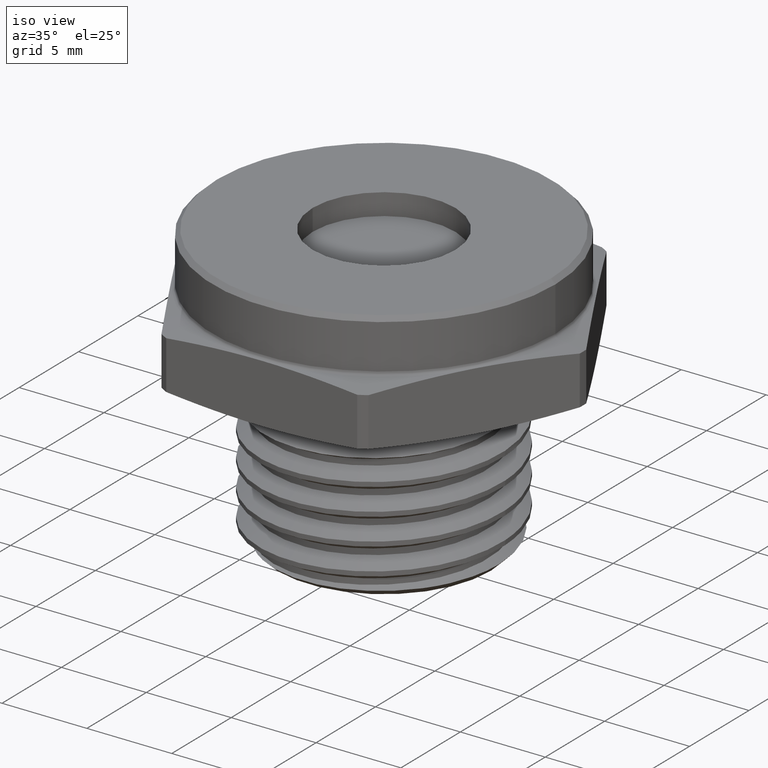
[diagram: clean part render]
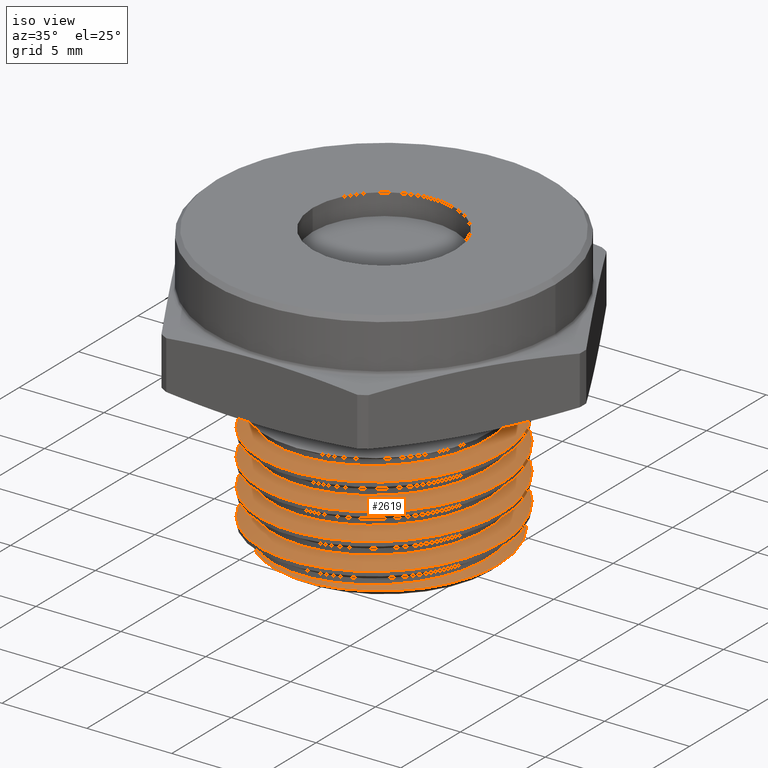
[diagram: same view with one face highlighted and labeled with its STEP entity id]
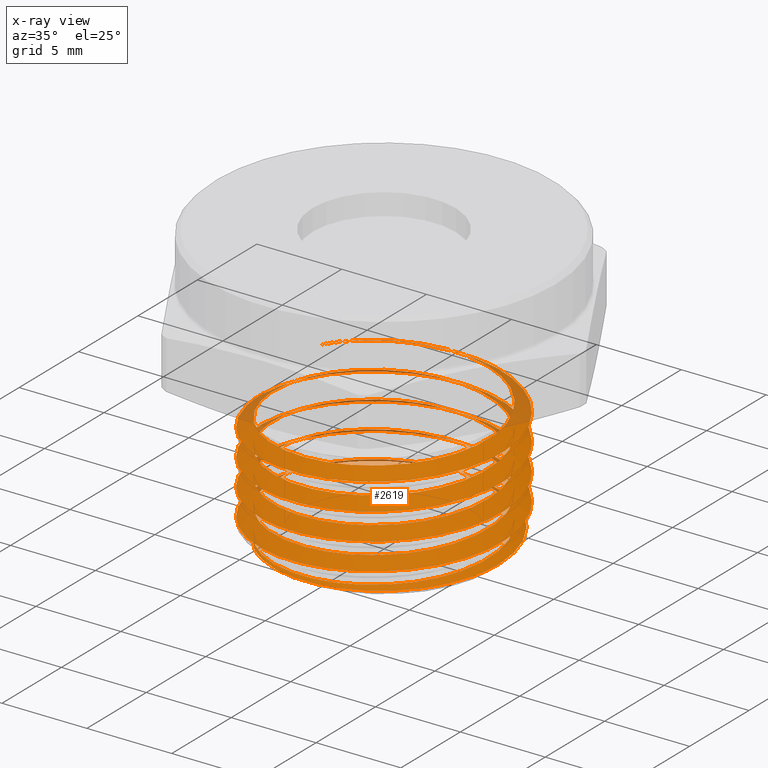
[diagram: x-ray of the same camera — body ghosted, the highlighted face saturated]
A machine part, iso view. The second image highlights one B-rep face of the part: STEP entity #2619.
The next image is the same camera in x-ray: the body ghosted, the highlighted face saturated — about 9% of this face is hidden behind the body in this view.
In plain terms, the highlighted face is a freeform B-spline surface patch.
Its self-contained STEP definition (entity closure, byte-faithful):
#11 = CARTESIAN_POINT ( 'NONE',  ( 0.1755031952628748100, 0.1755046109152726400, -0.2901577751675386600 ) ) ;
#12 = CARTESIAN_POINT ( 'NONE',  ( 0.1028068051627558200, 0.2482004146329688800, -0.2862515251675387100 ) ) ;
#13 = CARTESIAN_POINT ( 'NONE',  ( -1.001017410324708000E-006, 0.2481999999979813700, -0.2823452751675386600 ) ) ;
#14 = CARTESIAN_POINT ( 'NONE',  ( -0.1028088071975765000, 0.2481995853629938000, -0.2784390251675386600 ) ) ;
#15 = CARTESIAN_POINT ( 'NONE',  ( -0.1755046109152726100, 0.1755031952628748100, -0.2745327751675387100 ) ) ;
#16 = CARTESIAN_POINT ( 'NONE',  ( -0.2482004146329688800, 0.1028068051627558500, -0.2706265251675386600 ) ) ;
#17 = CARTESIAN_POINT ( 'NONE',  ( -0.2481999999979813700, -1.001017410370301500E-006, -0.2667202751675387100 ) ) ;
#18 = CARTESIAN_POINT ( 'NONE',  ( -0.2481995853629938300, -0.1028088071975764200, -0.2628140251675386600 ) ) ;
#19 = CARTESIAN_POINT ( 'NONE',  ( -0.1755031952628747800, -0.1755046109152726400, -0.2589077751675386600 ) ) ;
#20 = CARTESIAN_POINT ( 'NONE',  ( -0.1028068051627557100, -0.2482004146329689400, -0.2550015251675387100 ) ) ;
#21 = CARTESIAN_POINT ( 'NONE',  ( 1.001017410355103800E-006, -0.2481999999979813700, -0.2510952751675386600 ) ) ;
#22 = CARTESIAN_POINT ( 'NONE',  ( 0.1028088071975764000, -0.2481995853629938300, -0.2471890251675387100 ) ) ;
#23 = CARTESIAN_POINT ( 'NONE',  ( 0.1755046109152726400, -0.1755031952628747800, -0.2432827751675386800 ) ) ;
#24 = CARTESIAN_POINT ( 'NONE',  ( 0.2482004146329689400, -0.1028068051627557100, -0.2393765251675386300 ) ) ;
#25 = CARTESIAN_POINT ( 'NONE',  ( 0.2481999999979813700, 1.001017410339905900E-006, -0.2354702751675386800 ) ) ;
#26 = CARTESIAN_POINT ( 'NONE',  ( 0.2481995853629939400, 0.1028088071975763600, -0.2315640251675386800 ) ) ;
#27 = CARTESIAN_POINT ( 'NONE',  ( 0.1755031952628748100, 0.1755046109152726400, -0.2276577751675386800 ) ) ;
#28 = CARTESIAN_POINT ( 'NONE',  ( 0.1028068051627558200, 0.2482004146329688800, -0.2237515251675386800 ) ) ;
#29 = CARTESIAN_POINT ( 'NONE',  ( -1.001017410324708000E-006, 0.2481999999979813700, -0.2198452751675386600 ) ) ;
#30 = CARTESIAN_POINT ( 'NONE',  ( -0.1028088071975765000, 0.2481995853629938000, -0.2159390251675386800 ) ) ;
#31 = CARTESIAN_POINT ( 'NONE',  ( -0.1755046109152726100, 0.1755031952628748100, -0.2120327751675386600 ) ) ;
#32 = CARTESIAN_POINT ( 'NONE',  ( -0.2482004146329688800, 0.1028068051627558500, -0.2081265251675387100 ) ) ;
#33 = CARTESIAN_POINT ( 'NONE',  ( -0.2481999999979813700, -1.001017410370301500E-006, -0.2042202751675386800 ) ) ;
#34 = CARTESIAN_POINT ( 'NONE',  ( -0.2481995853629938300, -0.1028088071975764200, -0.2003140251675386300 ) ) ;
#35 = CARTESIAN_POINT ( 'NONE',  ( -0.1755031952628747800, -0.1755046109152726400, -0.1964077751675386800 ) ) ;
#36 = CARTESIAN_POINT ( 'NONE',  ( -0.1028068051627557100, -0.2482004146329689400, -0.1925015251675386600 ) ) ;
#37 = CARTESIAN_POINT ( 'NONE',  ( 1.001017410355103800E-006, -0.2481999999979813700, -0.1885952751675386800 ) ) ;
#38 = CARTESIAN_POINT ( 'NONE',  ( 0.1028088071975764000, -0.2481995853629938300, -0.1846890251675386800 ) ) ;
#39 = CARTESIAN_POINT ( 'NONE',  ( 0.1755046109152726400, -0.1755031952628747800, -0.1807827751675386600 ) ) ;
#40 = CARTESIAN_POINT ( 'NONE',  ( 0.2482004146329689400, -0.1028068051627557100, -0.1768765251675386800 ) ) ;
#41 = CARTESIAN_POINT ( 'NONE',  ( 0.2481999999979813700, 1.001017410339905900E-006, -0.1729702751675386600 ) ) ;
#42 = CARTESIAN_POINT ( 'NONE',  ( 0.2481995853629939400, 0.1028088071975763600, -0.1690640251675387100 ) ) ;
#43 = CARTESIAN_POINT ( 'NONE',  ( 0.1755031952628748100, 0.1755046109152726400, -0.1651577751675386800 ) ) ;
#44 = CARTESIAN_POINT ( 'NONE',  ( 0.1028068051627558200, 0.2482004146329688800, -0.1612515251675386600 ) ) ;
#45 = CARTESIAN_POINT ( 'NONE',  ( -1.001017410324708000E-006, 0.2481999999979813700, -0.1573452751675386800 ) ) ;
#46 = CARTESIAN_POINT ( 'NONE',  ( -0.1028088071975765000, 0.2481995853629938000, -0.1534390251675386800 ) ) ;
#47 = CARTESIAN_POINT ( 'NONE',  ( -0.1755046109152726100, 0.1755031952628748100, -0.1495327751675386800 ) ) ;
#48 = CARTESIAN_POINT ( 'NONE',  ( -0.2482004146329688800, 0.1028068051627558500, -0.1456265251675387100 ) ) ;
#49 = CARTESIAN_POINT ( 'NONE',  ( -0.2481999999979813700, -1.001017410370301500E-006, -0.1417202751675386600 ) ) ;
#50 = CARTESIAN_POINT ( 'NONE',  ( -0.2481995853629938300, -0.1028088071975764200, -0.1378140251675386800 ) ) ;
#51 = CARTESIAN_POINT ( 'NONE',  ( -0.1755031952628747800, -0.1755046109152726400, -0.1339077751675387100 ) ) ;
#52 = CARTESIAN_POINT ( 'NONE',  ( -0.1028068051627557100, -0.2482004146329689400, -0.1300015251675386600 ) ) ;
#53 = CARTESIAN_POINT ( 'NONE',  ( 1.001017410355103800E-006, -0.2481999999979813700, -0.1260952751675386800 ) ) ;
#54 = CARTESIAN_POINT ( 'NONE',  ( 0.1028088071975764000, -0.2481995853629938300, -0.1221890251675387000 ) ) ;
#55 = CARTESIAN_POINT ( 'NONE',  ( 0.1755046109152726400, -0.1755031952628747800, -0.1182827751675386400 ) ) ;
#56 = CARTESIAN_POINT ( 'NONE',  ( 0.2482004146329689400, -0.1028068051627557100, -0.1143765251675386800 ) ) ;
#57 = CARTESIAN_POINT ( 'NONE',  ( 0.2481999999979813700, 1.001017410339905900E-006, -0.1104702751675386800 ) ) ;
#58 = CARTESIAN_POINT ( 'NONE',  ( 0.2481995853629939400, 0.1028088071975763600, -0.1065640251675387100 ) ) ;
#59 = CARTESIAN_POINT ( 'NONE',  ( 0.1755031952628748100, 0.1755046109152726400, -0.1026577751675386600 ) ) ;
#60 = CARTESIAN_POINT ( 'NONE',  ( 0.1028068051627558200, 0.2482004146329688800, -0.09875152516753869800 ) ) ;
#61 = CARTESIAN_POINT ( 'NONE',  ( -1.001017410324708000E-006, 0.2481999999979813700, -0.09484527516753869800 ) ) ;
#62 = CARTESIAN_POINT ( 'NONE',  ( -0.1028088071975765000, 0.2481995853629938000, -0.09093902516753865600 ) ) ;
#63 = CARTESIAN_POINT ( 'NONE',  ( -0.1755046109152726100, 0.1755031952628748100, -0.08703277516753867000 ) ) ;
#64 = CARTESIAN_POINT ( 'NONE',  ( -0.2081750561951863900, 0.1428324864550285200, -0.08527725531153361500 ) ) ;
#65 = CARTESIAN_POINT ( 'NONE',  ( -0.2269009662685338200, 0.1005941922101156500, -0.08337766952966353700 ) ) ;
#141 = CARTESIAN_POINT ( 'NONE',  ( 0.2672122248368277700, 0.01299860304645300900, -0.3709877751631743800 ) ) ;
#142 = CARTESIAN_POINT ( 'NONE',  ( 0.2665517265516365600, 0.02607915291473436900, -0.3706868384902027900 ) ) ;
#146 = CARTESIAN_POINT ( 'NONE',  ( 0.2669210712642096100, -2.178278330232347000E-016, -0.3712789287357927700 ) ) ;
#147 = CARTESIAN_POINT ( 'NONE',  ( 0.2634005041245665600, 0.05171213958644189200, -0.3700818965637686100 ) ) ;
#148 = CARTESIAN_POINT ( 'NONE',  ( 0.2609143233083574500, 0.06436387413137187300, -0.3697756863352829600 ) ) ;
#149 = CARTESIAN_POINT ( 'NONE',  ( 0.2541087606875976300, 0.08933564654218931200, -0.3691558776575580300 ) ) ;
#150 = CARTESIAN_POINT ( 'NONE',  ( 0.2497436833621704800, 0.1017378096411887900, -0.3688400516588030100 ) ) ;
#151 = CARTESIAN_POINT ( 'NONE',  ( 0.2393949106527477900, 0.1254889906551399900, -0.3682190701131574100 ) ) ;
#152 = CARTESIAN_POINT ( 'NONE',  ( 0.2334063552620641600, 0.1369055410836868500, -0.3679123478639644800 ) ) ;
#153 = CARTESIAN_POINT ( 'NONE',  ( 0.2198223566267486800, 0.1588326523812689800, -0.3673062182764635400 ) ) ;
#154 = CARTESIAN_POINT ( 'NONE',  ( 0.2121867788431069900, 0.1693904855117637200, -0.3670054155854609000 ) ) ;
#155 = CARTESIAN_POINT ( 'NONE',  ( 0.1954065678528197600, 0.1893460007300153400, -0.3664174183827824100 ) ) ;
#156 = CARTESIAN_POINT ( 'NONE',  ( 0.1863852346568219100, 0.1986069932821717700, -0.3661373050607158500 ) ) ;
#157 = CARTESIAN_POINT ( 'NONE',  ( 0.1671552708613956400, 0.2157791177651333100, -0.3655547566173058500 ) ) ;
#158 = CARTESIAN_POINT ( 'NONE',  ( 0.1569430847804803000, 0.2236863863110950000, -0.3652574342672838000 ) ) ;
#159 = CARTESIAN_POINT ( 'NONE',  ( 0.1352916272732336800, 0.2381062012882281800, -0.3646505521672937500 ) ) ;
#160 = CARTESIAN_POINT ( 'NONE',  ( 0.1239115588023107400, 0.2445611600711952700, -0.3643428345815484800 ) ) ;
#161 = CARTESIAN_POINT ( 'NONE',  ( 0.1006175414290256400, 0.2556837924180883100, -0.3637339675308444700 ) ) ;
#162 = CARTESIAN_POINT ( 'NONE',  ( 0.08862700651827261400, 0.2604045983623279300, -0.3634306496187297300 ) ) ;
#163 = CARTESIAN_POINT ( 'NONE',  ( 0.06395508436872769700, 0.2681558891449145100, -0.3628262022704035200 ) ) ;
#164 = CARTESIAN_POINT ( 'NONE',  ( 0.05117255287471556700, 0.2711959725423416800, -0.3625228164619451200 ) ) ;
#165 = CARTESIAN_POINT ( 'NONE',  ( 0.01279144053142324200, 0.2774772818332740300, -0.3616401362909904500 ) ) ;
#166 = CARTESIAN_POINT ( 'NONE',  ( -0.01301364248689666800, 0.2780238505946947000, -0.3610992914775191800 ) ) ;
#167 = CARTESIAN_POINT ( 'NONE',  ( -0.06488581466859723300, 0.2718657898251893300, -0.3599207106235455800 ) ) ;
#168 = CARTESIAN_POINT ( 'NONE',  ( -0.08980888524143024200, 0.2652878441028868600, -0.3593257466790353300 ) ) ;
#169 = CARTESIAN_POINT ( 'NONE',  ( -0.1257051316037818300, 0.2502801551999220800, -0.3584253952455934100 ) ) ;
#170 = CARTESIAN_POINT ( 'NONE',  ( -0.1374302237840884200, 0.2443890678663264100, -0.3581235279126189200 ) ) ;
#171 = CARTESIAN_POINT ( 'NONE',  ( -0.1598715942227380800, 0.2310568320988970200, -0.3575294927964557900 ) ) ;
#172 = CARTESIAN_POINT ( 'NONE',  ( -0.1706163969112913200, 0.2236092474831714600, -0.3572366523805944300 ) ) ;
#173 = CARTESIAN_POINT ( 'NONE',  ( -0.1808067968013041800, 0.2154308815617015600, -0.3569500000000038200 ) ) ;
#178 = CARTESIAN_POINT ( 'NONE',  ( -0.2443275333129481300, -0.04367260543189813200, -0.3900000000000000700 ) ) ;
#179 = CARTESIAN_POINT ( 'NONE',  ( -0.2419037896888225600, -0.05955731251580851500, -0.3895908974866588700 ) ) ;
#183 = CARTESIAN_POINT ( 'NONE',  ( -0.2379986396663712200, -0.07495622594466185000, -0.3891807332272311800 ) ) ;
#184 = CARTESIAN_POINT ( 'NONE',  ( -0.2300064032709420400, -0.09735463591709923900, -0.3885641203403038000 ) ) ;
#185 = CARTESIAN_POINT ( 'NONE',  ( -0.2269840591315357700, -0.1047032882214492700, -0.3883583496199327100 ) ) ;
#186 = CARTESIAN_POINT ( 'NONE',  ( -0.2202075134543339300, -0.1191605977047493900, -0.3879463174546333700 ) ) ;
#187 = CARTESIAN_POINT ( 'NONE',  ( -0.2164367842667238000, -0.1262901410034417400, -0.3877394021130789500 ) ) ;
#188 = CARTESIAN_POINT ( 'NONE',  ( -0.2042466856677790900, -0.1468790722144950600, -0.3871305083392209100 ) ) ;
#189 = CARTESIAN_POINT ( 'NONE',  ( -0.1949032181028426400, -0.1596849067123964900, -0.3867364225882238800 ) ) ;
#190 = CARTESIAN_POINT ( 'NONE',  ( -0.1738073556328232100, -0.1834748772907226800, -0.3859710873530601300 ) ) ;
#191 = CARTESIAN_POINT ( 'NONE',  ( -0.1619618765797051200, -0.1945087093868721200, -0.3855870139182722700 ) ) ;
#192 = CARTESIAN_POINT ( 'NONE',  ( -0.1368051377528843000, -0.2138898329466022200, -0.3847980670987846700 ) ) ;
#193 = CARTESIAN_POINT ( 'NONE',  ( -0.1234021937830131900, -0.2223560271398402300, -0.3843979030047345900 ) ) ;
#194 = CARTESIAN_POINT ( 'NONE',  ( -0.1020398836309150700, -0.2331875460180329300, -0.3837891717710255100 ) ) ;
#195 = CARTESIAN_POINT ( 'NONE',  ( -0.09468376245060342000, -0.2364904154195917600, -0.3835842139226175500 ) ) ;
#196 = CARTESIAN_POINT ( 'NONE',  ( -0.07984469354270974700, -0.2423297115800454900, -0.3831797434240424800 ) ) ;
#197 = CARTESIAN_POINT ( 'NONE',  ( -0.07232898109399384100, -0.2448853768130765700, -0.3829792683988225700 ) ) ;
#198 = CARTESIAN_POINT ( 'NONE',  ( -0.04949892774533984400, -0.2514816806384495000, -0.3823829759986076000 ) ) ;
#199 = CARTESIAN_POINT ( 'NONE',  ( -0.03390421660194144900, -0.2544612629641885300, -0.3819922575329693400 ) ) ;
#200 = CARTESIAN_POINT ( 'NONE',  ( -0.001934940094221002100, -0.2574690308264778700, -0.3812244702793181600 ) ) ;
#201 = CARTESIAN_POINT ( 'NONE',  ( 0.01397803717992108400, -0.2574474469866660500, -0.3808605036942051500 ) ) ;
#202 = CARTESIAN_POINT ( 'NONE',  ( 0.03764781096009400100, -0.2552738028372406600, -0.3802865788603389500 ) ) ;
#203 = CARTESIAN_POINT ( 'NONE',  ( 0.04550978667365842400, -0.2541881059119034400, -0.3800928579891886800 ) ) ;
#204 = CARTESIAN_POINT ( 'NONE',  ( 0.06117690240238390200, -0.2512822783310145700, -0.3797005615526361500 ) ) ;
#205 = CARTESIAN_POINT ( 'NONE',  ( 0.06902175536073916500, -0.2494494284097704700, -0.3795009466108222300 ) ) ;
#206 = CARTESIAN_POINT ( 'NONE',  ( 0.09208851442528924500, -0.2429180527296587200, -0.3789044243711459600 ) ) ;
#207 = CARTESIAN_POINT ( 'NONE',  ( 0.1068763813767922400, -0.2372087761874714100, -0.3785092435418618300 ) ) ;
#208 = CARTESIAN_POINT ( 'NONE',  ( 0.1281939757963537800, -0.2266599883551177800, -0.3779200989320750100 ) ) ;
#209 = CARTESIAN_POINT ( 'NONE',  ( 0.1351548962162202000, -0.2228108235744558900, -0.3777243229214530300 ) ) ;
#210 = CARTESIAN_POINT ( 'NONE',  ( 0.1487791327184200000, -0.2144289713770742300, -0.3773339742805548700 ) ) ;
#211 = CARTESIAN_POINT ( 'NONE',  ( 0.1554309049501121400, -0.2098977452066450600, -0.3771396844312304200 ) ) ;
#212 = CARTESIAN_POINT ( 'NONE',  ( 0.1745295318287817800, -0.1955576602441801100, -0.3765705085541025100 ) ) ;
#213 = CARTESIAN_POINT ( 'NONE',  ( 0.1862636140563665200, -0.1849182312554099000, -0.3762141515255062500 ) ) ;
#214 = CARTESIAN_POINT ( 'NONE',  ( 0.2077970357767951700, -0.1615501476769259900, -0.3754724663820114300 ) ) ;
#215 = CARTESIAN_POINT ( 'NONE',  ( 0.2176387561493117200, -0.1487097834705693500, -0.3750854977239364600 ) ) ;
#216 = CARTESIAN_POINT ( 'NONE',  ( 0.2346007555093057300, -0.1218614716398233200, -0.3743141417475012200 ) ) ;
#217 = CARTESIAN_POINT ( 'NONE',  ( 0.2418267751120838400, -0.1077669590832785000, -0.3739267355568046100 ) ) ;
#218 = CARTESIAN_POINT ( 'NONE',  ( 0.2507657676963204700, -0.08561027066752897900, -0.3733430544441665400 ) ) ;
#219 = CARTESIAN_POINT ( 'NONE',  ( 0.2534375861048894800, -0.07801458977602901400, -0.3731470641613577300 ) ) ;
#220 = CARTESIAN_POINT ( 'NONE',  ( 0.2580492119020230700, -0.06271124272077657800, -0.3727602361082134600 ) ) ;
#221 = CARTESIAN_POINT ( 'NONE',  ( 0.2599943740330269400, -0.05500314850753955400, -0.3725693328410549200 ) ) ;
#222 = CARTESIAN_POINT ( 'NONE',  ( 0.2647747605576645800, -0.03171380615867294000, -0.3720039046635063600 ) ) ;
#223 = CARTESIAN_POINT ( 'NONE',  ( 0.2665633881043065200, -0.01596882830654320100, -0.3716366118956953600 ) ) ;
#224 = CARTESIAN_POINT ( 'NONE',  ( 0.2669210712642096100, -2.178278330232347000E-016, -0.3712789287357927700 ) ) ;
#485 = ORIENTED_EDGE ( 'NONE', *, *, #868, .F. ) ;
#486 = ORIENTED_EDGE ( 'NONE', *, *, #1192, .T. ) ;
#487 = ORIENTED_EDGE ( 'NONE', *, *, #1188, .T. ) ;
#488 = ORIENTED_EDGE ( 'NONE', *, *, #1309, .F. ) ;
#489 = ORIENTED_EDGE ( 'NONE', *, *, #826, .F. ) ;
#490 = ORIENTED_EDGE ( 'NONE', *, *, #814, .F. ) ;
#491 = ORIENTED_EDGE ( 'NONE', *, *, #828, .F. ) ;
#492 = ORIENTED_EDGE ( 'NONE', *, *, #818, .F. ) ;
#493 = ORIENTED_EDGE ( 'NONE', *, *, #830, .F. ) ;
#494 = ORIENTED_EDGE ( 'NONE', *, *, #822, .F. ) ;
#495 = ORIENTED_EDGE ( 'NONE', *, *, #833, .F. ) ;
#496 = ORIENTED_EDGE ( 'NONE', *, *, #835, .F. ) ;
#497 = ORIENTED_EDGE ( 'NONE', *, *, #1209, .T. ) ;
#794 = FACE_OUTER_BOUND ( 'NONE', #1308, .T. ) ;
#814 = EDGE_CURVE ( 'NONE', #2538, #2537, #1377, .T. ) ;
#818 = EDGE_CURVE ( 'NONE', #2534, #2569, #1382, .T. ) ;
#822 = EDGE_CURVE ( 'NONE', #1298, #1274, #1384, .T. ) ;
#826 = EDGE_CURVE ( 'NONE', #2537, #2542, #1386, .T. ) ;
#828 = EDGE_CURVE ( 'NONE', #2569, #2538, #1388, .T. ) ;
#830 = EDGE_CURVE ( 'NONE', #1274, #2534, #1390, .T. ) ;
#833 = EDGE_CURVE ( 'NONE', #1293, #1298, #1392, .T. ) ;
#835 = EDGE_CURVE ( 'NONE', #1360, #1293, #1394, .T. ) ;
#868 = EDGE_CURVE ( 'NONE', #1331, #1352, #1404, .T. ) ;
#1010 = CARTESIAN_POINT ( 'NONE',  ( -0.1988745842865448100, 0.1988729801276532500, -0.2936142015642555500 ) ) ;
#1013 = CARTESIAN_POINT ( 'NONE',  ( -0.1988745842865448100, 0.1988729801276532500, -0.2311142015642555500 ) ) ;
#1023 = CARTESIAN_POINT ( 'NONE',  ( -0.2812499999999994400, 0.1164968999536195700, -0.2897079738442215900 ) ) ;
#1024 = CARTESIAN_POINT ( 'NONE',  ( -0.2812499999999999400, -1.156014491658903800E-016, -0.2858017395986001700 ) ) ;
#1025 = CARTESIAN_POINT ( 'NONE',  ( -0.1164986987281159800, 0.2812495301504512900, -0.2975204515642555500 ) ) ;
#1026 = CARTESIAN_POINT ( 'NONE',  ( -1.134311630353844300E-006, 0.2812499999977126100, -0.3014267015642555500 ) ) ;
#1027 = CARTESIAN_POINT ( 'NONE',  ( 0.1164964301048552800, 0.2812504698449738700, -0.3053329515642555500 ) ) ;
#1028 = CARTESIAN_POINT ( 'NONE',  ( 0.1988729801276532500, 0.1988745842865448400, -0.3092392015642556100 ) ) ;
#1029 = CARTESIAN_POINT ( 'NONE',  ( 0.2812495301504514000, 0.1164986987281158600, -0.3131454515642556100 ) ) ;
#1030 = CARTESIAN_POINT ( 'NONE',  ( 0.2812499999977126100, 1.134311630371065800E-006, -0.3170517015642555500 ) ) ;
#1031 = CARTESIAN_POINT ( 'NONE',  ( 0.2812500000000000000, 5.671558018451957500E-007, -0.3170517205814124000 ) ) ;
#1032 = CARTESIAN_POINT ( 'NONE',  ( 0.2812500000000000000, 8.116029125503403500E-017, -0.3170517395986001100 ) ) ;
#1047 = CARTESIAN_POINT ( 'NONE',  ( -0.2812499999999889000, 0.1164968999536300900, -0.2272079738442220900 ) ) ;
#1049 = CARTESIAN_POINT ( 'NONE',  ( -0.1988745842865448100, 0.1988729801276532500, -0.1686142015642555800 ) ) ;
#1050 = CARTESIAN_POINT ( 'NONE',  ( -0.2812500000000000000, -1.155979320171571700E-016, -0.2233017395986001700 ) ) ;
#1051 = CARTESIAN_POINT ( 'NONE',  ( -0.1164986987281159800, 0.2812495301504512900, -0.2350204515642555800 ) ) ;
#1052 = CARTESIAN_POINT ( 'NONE',  ( -1.134311630353844300E-006, 0.2812499999977126100, -0.2389267015642555500 ) ) ;
#1053 = CARTESIAN_POINT ( 'NONE',  ( 0.1164964301048552800, 0.2812504698449738700, -0.2428329515642555500 ) ) ;
#1054 = CARTESIAN_POINT ( 'NONE',  ( 0.1988729801276532500, 0.1988745842865448400, -0.2467392015642555800 ) ) ;
#1055 = CARTESIAN_POINT ( 'NONE',  ( 0.2812495301504514000, 0.1164986987281158600, -0.2506454515642555500 ) ) ;
#1056 = CARTESIAN_POINT ( 'NONE',  ( 0.2812499999977126100, 1.134311630371065800E-006, -0.2545517015642555500 ) ) ;
#1057 = CARTESIAN_POINT ( 'NONE',  ( 0.2812500000000000600, 5.671558152284194400E-007, -0.2545517205814120100 ) ) ;
#1058 = CARTESIAN_POINT ( 'NONE',  ( 0.2812500000000000000, 8.116029125503403500E-017, -0.2545517395986001700 ) ) ;
#1062 = CARTESIAN_POINT ( 'NONE',  ( 0.2812499999999889500, -0.1164968999536299400, -0.3209579738442220300 ) ) ;
#1073 = CARTESIAN_POINT ( 'NONE',  ( -0.2812500000000000000, 0.1164968999536190000, -0.1647079738442215900 ) ) ;
#1075 = CARTESIAN_POINT ( 'NONE',  ( -0.2812500000000000000, -1.156050965793914700E-016, -0.1608017395986001700 ) ) ;
#1076 = CARTESIAN_POINT ( 'NONE',  ( -0.1164986987281159800, 0.2812495301504512900, -0.1725204515642555500 ) ) ;
#1077 = CARTESIAN_POINT ( 'NONE',  ( -1.134311630353844300E-006, 0.2812499999977126100, -0.1764267015642555800 ) ) ;
#1078 = CARTESIAN_POINT ( 'NONE',  ( 0.1164964301048552800, 0.2812504698449738700, -0.1803329515642555500 ) ) ;
#1079 = CARTESIAN_POINT ( 'NONE',  ( 0.1988729801276532500, 0.1988745842865448400, -0.1842392015642555500 ) ) ;
#1080 = CARTESIAN_POINT ( 'NONE',  ( 0.2812495301504514000, 0.1164986987281158600, -0.1881454515642555800 ) ) ;
#1081 = CARTESIAN_POINT ( 'NONE',  ( 0.2812499999977126100, 1.134311630371065800E-006, -0.1920517015642555500 ) ) ;
#1082 = CARTESIAN_POINT ( 'NONE',  ( 0.2812499999999999400, 5.671555234741073900E-007, -0.1920517205814217300 ) ) ;
#1083 = CARTESIAN_POINT ( 'NONE',  ( 0.2812500000000000000, 8.116393866853513800E-017, -0.1920517395986001400 ) ) ;
#1085 = CARTESIAN_POINT ( 'NONE',  ( 0.2812500000000000000, 8.116029125503403500E-017, -0.3170517395986001100 ) ) ;
#1101 = CARTESIAN_POINT ( 'NONE',  ( 0.1988745842865448400, -0.1988729801276532300, -0.3248642015642556100 ) ) ;
#1102 = CARTESIAN_POINT ( 'NONE',  ( 0.1164986987281159500, -0.2812495301504513400, -0.3287704515642555500 ) ) ;
#1103 = CARTESIAN_POINT ( 'NONE',  ( 1.134311630388287500E-006, -0.2812499999977126100, -0.3326767015642555500 ) ) ;
#1104 = CARTESIAN_POINT ( 'NONE',  ( -0.1164964301048551400, -0.2812504698449739300, -0.3365829515642556100 ) ) ;
#1105 = CARTESIAN_POINT ( 'NONE',  ( -0.1988729801276532300, -0.1988745842865448400, -0.3404892015642555500 ) ) ;
#1106 = CARTESIAN_POINT ( 'NONE',  ( -0.2812495301504513400, -0.1164986987281159500, -0.3443954515642556600 ) ) ;
#1107 = CARTESIAN_POINT ( 'NONE',  ( -0.2812499999977126100, -1.134311630405509100E-006, -0.3483017015642555500 ) ) ;
#1108 = CARTESIAN_POINT ( 'NONE',  ( -0.2812499999999999400, -5.671555235085495500E-007, -0.3483017205814217300 ) ) ;
#1109 = CARTESIAN_POINT ( 'NONE',  ( -0.2812500000000000000, -1.156014491658903800E-016, -0.3483017395986001700 ) ) ;
#1110 = CARTESIAN_POINT ( 'NONE',  ( 0.2812500000000000600, -0.1164968999536188400, -0.2584579738442215300 ) ) ;
#1111 = CARTESIAN_POINT ( 'NONE',  ( 0.2812500000000000000, 8.116029125503403500E-017, -0.2545517395986001700 ) ) ;
#1123 = CARTESIAN_POINT ( 'NONE',  ( 0.1988745842865448400, -0.1988729801276532300, -0.2623642015642555500 ) ) ;
#1124 = CARTESIAN_POINT ( 'NONE',  ( 0.1164986987281159500, -0.2812495301504513400, -0.2662704515642555500 ) ) ;
#1125 = CARTESIAN_POINT ( 'NONE',  ( 1.134311630388287500E-006, -0.2812499999977126100, -0.2701767015642555500 ) ) ;
#1126 = CARTESIAN_POINT ( 'NONE',  ( -0.1164964301048551400, -0.2812504698449739300, -0.2740829515642555500 ) ) ;
#1127 = CARTESIAN_POINT ( 'NONE',  ( -0.1988729801276532300, -0.1988745842865448400, -0.2779892015642555500 ) ) ;
#1128 = CARTESIAN_POINT ( 'NONE',  ( -0.2812495301504513400, -0.1164986987281159500, -0.2818954515642555500 ) ) ;
#1129 = CARTESIAN_POINT ( 'NONE',  ( -0.2812499999977126100, -1.134311630405509100E-006, -0.2858017015642556100 ) ) ;
#1130 = CARTESIAN_POINT ( 'NONE',  ( -0.2812500000000000600, -5.671558145937021900E-007, -0.2858017205814120700 ) ) ;
#1131 = CARTESIAN_POINT ( 'NONE',  ( -0.2812499999999999400, -1.156014491658903800E-016, -0.2858017395986001700 ) ) ;
#1132 = CARTESIAN_POINT ( 'NONE',  ( 0.2812499999997584200, -0.1164968999538605900, -0.1959579738442330500 ) ) ;
#1133 = CARTESIAN_POINT ( 'NONE',  ( 0.2812500000000000000, 8.116393866853513800E-017, -0.1920517395986001400 ) ) ;
#1145 = CARTESIAN_POINT ( 'NONE',  ( 0.1988745842865448400, -0.1988729801276532300, -0.1998642015642555500 ) ) ;
#1146 = CARTESIAN_POINT ( 'NONE',  ( 0.1164986987281159500, -0.2812495301504513400, -0.2037704515642555500 ) ) ;
#1147 = CARTESIAN_POINT ( 'NONE',  ( 1.134311630388287500E-006, -0.2812499999977126100, -0.2076767015642555800 ) ) ;
#1148 = CARTESIAN_POINT ( 'NONE',  ( -0.1164964301048551400, -0.2812504698449739300, -0.2115829515642555500 ) ) ;
#1149 = CARTESIAN_POINT ( 'NONE',  ( -0.1988729801276532300, -0.1988745842865448400, -0.2154892015642555800 ) ) ;
#1150 = CARTESIAN_POINT ( 'NONE',  ( -0.2812495301504513400, -0.1164986987281159500, -0.2193954515642555500 ) ) ;
#1151 = CARTESIAN_POINT ( 'NONE',  ( -0.2812499999977126100, -1.134311630405509100E-006, -0.2233017015642555500 ) ) ;
#1152 = CARTESIAN_POINT ( 'NONE',  ( -0.2812500000000000000, -5.671558018796343100E-007, -0.2233017205814124300 ) ) ;
#1153 = CARTESIAN_POINT ( 'NONE',  ( -0.2812500000000000000, -1.155979320171571700E-016, -0.2233017395986001700 ) ) ;
#1154 = CARTESIAN_POINT ( 'NONE',  ( 0.2812500000000000600, -0.1164968999536188400, -0.1334579738442215300 ) ) ;
#1166 = CARTESIAN_POINT ( 'NONE',  ( 0.2812500000000000000, 8.115683923868477200E-017, -0.1295517395986001400 ) ) ;
#1169 = CARTESIAN_POINT ( 'NONE',  ( 0.07083112541716007900, 0.2721847059849956700, -0.1164276695296635600 ) ) ;
#1170 = CARTESIAN_POINT ( 'NONE',  ( 0.1988745842865448400, -0.1988729801276532300, -0.1373642015642555200 ) ) ;
#1171 = CARTESIAN_POINT ( 'NONE',  ( 0.1164986987281159500, -0.2812495301504513400, -0.1412704515642555800 ) ) ;
#1172 = CARTESIAN_POINT ( 'NONE',  ( 1.134311630388287500E-006, -0.2812499999977126100, -0.1451767015642555500 ) ) ;
#1173 = CARTESIAN_POINT ( 'NONE',  ( -0.1164964301048551400, -0.2812504698449739300, -0.1490829515642555500 ) ) ;
#1188 = EDGE_CURVE ( 'NONE', #1315, #1356, #1407, .T. ) ;
#1192 = EDGE_CURVE ( 'NONE', #1331, #1315, #1408, .T. ) ;
#1209 = EDGE_CURVE ( 'NONE', #1360, #1352, #2911, .T. ) ;
#1247 = CARTESIAN_POINT ( 'NONE',  ( -0.2812500000000000600, -5.671558152628634000E-007, -0.1608017205814119600 ) ) ;
#1249 = CARTESIAN_POINT ( 'NONE',  ( -0.2812495301504513400, -0.1164986987281159500, -0.1568954515642555800 ) ) ;
#1250 = CARTESIAN_POINT ( 'NONE',  ( -0.1988729801276532300, -0.1988745842865448400, -0.1529892015642555800 ) ) ;
#1274 = VERTEX_POINT ( 'NONE', #1577 ) ;
#1293 = VERTEX_POINT ( 'NONE', #1582 ) ;
#1298 = VERTEX_POINT ( 'NONE', #1586 ) ;
#1308 = EDGE_LOOP ( 'NONE', ( #485, #486, #487, #488, #489, #490, #491, #492, #493, #494, #495, #496, #497 ) ) ;
#1309 = EDGE_CURVE ( 'NONE', #2542, #1356, #2919, .T. ) ;
#1315 = VERTEX_POINT ( 'NONE', #1604 ) ;
#1331 = VERTEX_POINT ( 'NONE', #1611 ) ;
#1352 = VERTEX_POINT ( 'NONE', #1625 ) ;
#1356 = VERTEX_POINT ( 'NONE', #1629 ) ;
#1360 = VERTEX_POINT ( 'NONE', #1624 ) ;
#1377 =( BOUNDED_CURVE ( )  B_SPLINE_CURVE ( 2, ( #1024, #1023, #1010, #1025, #1026, #1027, #1028, #1029, #1030, #1031, #1032 ),
 .UNSPECIFIED., .F., .F. ) 
 B_SPLINE_CURVE_WITH_KNOTS ( ( 3, 2, 2, 2, 2, 3 ),
 ( 0.5000000940983475600, 0.5178571428571429000, 0.5357142857142858100, 0.5535714285714286000, 0.5714285714285714000, 0.5714286655269210600 ),
 .UNSPECIFIED. ) 
 CURVE ( )  GEOMETRIC_REPRESENTATION_ITEM ( )  RATIONAL_B_SPLINE_CURVE ( ( 0.9999991977694842000, 0.9238799336286582800, 1.000000000000000000, 0.9238795325112867400, 1.000000000000000000, 0.9238795325112867400, 1.000000000000000000, 0.9238795325112867400, 1.000000000000000000, 0.9999995988826194700, 0.9999991977694662200 ) ) 
 REPRESENTATION_ITEM ( '' )  );
#1382 =( BOUNDED_CURVE ( )  B_SPLINE_CURVE ( 2, ( #1050, #1047, #1013, #1051, #1052, #1053, #1054, #1055, #1056, #1057, #1058 ),
 .UNSPECIFIED., .F., .F. ) 
 B_SPLINE_CURVE_WITH_KNOTS ( ( 3, 2, 2, 2, 2, 3 ),
 ( 0.3571429512412068700, 0.3750000000000000000, 0.3928571428571429000, 0.4107142857142857000, 0.4285714285714286000, 0.4285715226697760500 ),
 .UNSPECIFIED. ) 
 CURVE ( )  GEOMETRIC_REPRESENTATION_ITEM ( )  RATIONAL_B_SPLINE_CURVE ( ( 0.9999991977694662200, 0.9238799336286672700, 1.000000000000000000, 0.9238795325112867400, 1.000000000000000000, 0.9238795325112867400, 1.000000000000000000, 0.9238795325112867400, 1.000000000000000000, 0.9999995988826289000, 0.9999991977694852000 ) ) 
 REPRESENTATION_ITEM ( '' )  );
#1384 =( BOUNDED_CURVE ( )  B_SPLINE_CURVE ( 2, ( #1075, #1073, #1049, #1076, #1077, #1078, #1079, #1080, #1081, #1082, #1083 ),
 .UNSPECIFIED., .F., .F. ) 
 B_SPLINE_CURVE_WITH_KNOTS ( ( 3, 2, 2, 2, 2, 3 ),
 ( 0.2142858083840617500, 0.2321428571428572100, 0.2500000000000000000, 0.2678571428571429000, 0.2857142857142857000, 0.2857143798126815500 ),
 .UNSPECIFIED. ) 
 CURVE ( )  GEOMETRIC_REPRESENTATION_ITEM ( )  RATIONAL_B_SPLINE_CURVE ( ( 0.9999991977694852000, 0.9238799336286578300, 1.000000000000000000, 0.9238795325112867400, 1.000000000000000000, 0.9238795325112867400, 1.000000000000000000, 0.9238795325112867400, 1.000000000000000000, 0.9999995988824226200, 0.9999991977690725300 ) ) 
 REPRESENTATION_ITEM ( '' )  );
#1386 =( BOUNDED_CURVE ( )  B_SPLINE_CURVE ( 2, ( #1085, #1062, #1101, #1102, #1103, #1104, #1105, #1106, #1107, #1108, #1109 ),
 .UNSPECIFIED., .F., .F. ) 
 B_SPLINE_CURVE_WITH_KNOTS ( ( 3, 2, 2, 2, 2, 3 ),
 ( 0.5714286655269210600, 0.5892857142857143000, 0.6071428571428572100, 0.6250000000000000000, 0.6428571428571429000, 0.6428572369555387600 ),
 .UNSPECIFIED. ) 
 CURVE ( )  GEOMETRIC_REPRESENTATION_ITEM ( )  RATIONAL_B_SPLINE_CURVE ( ( 0.9999991977694662200, 0.9238799336286672700, 1.000000000000000000, 0.9238795325112867400, 1.000000000000000000, 0.9238795325112867400, 1.000000000000000000, 0.9238795325112867400, 1.000000000000000000, 0.9999995988824226200, 0.9999991977690725300 ) ) 
 REPRESENTATION_ITEM ( '' )  );
#1388 =( BOUNDED_CURVE ( )  B_SPLINE_CURVE ( 2, ( #1111, #1110, #1123, #1124, #1125, #1126, #1127, #1128, #1129, #1130, #1131 ),
 .UNSPECIFIED., .F., .F. ) 
 B_SPLINE_CURVE_WITH_KNOTS ( ( 3, 2, 2, 2, 2, 3 ),
 ( 0.4285715226697760500, 0.4464285714285714500, 0.4642857142857143000, 0.4821428571428571500, 0.5000000000000000000, 0.5000000940983475600 ),
 .UNSPECIFIED. ) 
 CURVE ( )  GEOMETRIC_REPRESENTATION_ITEM ( )  RATIONAL_B_SPLINE_CURVE ( ( 0.9999991977694852000, 0.9238799336286578300, 1.000000000000000000, 0.9238795325112867400, 1.000000000000000000, 0.9238795325112867400, 1.000000000000000000, 0.9238795325112867400, 1.000000000000000000, 0.9999995988826284600, 0.9999991977694842000 ) ) 
 REPRESENTATION_ITEM ( '' )  );
#1390 =( BOUNDED_CURVE ( )  B_SPLINE_CURVE ( 2, ( #1133, #1132, #1145, #1146, #1147, #1148, #1149, #1150, #1151, #1152, #1153 ),
 .UNSPECIFIED., .F., .F. ) 
 B_SPLINE_CURVE_WITH_KNOTS ( ( 3, 2, 2, 2, 2, 3 ),
 ( 0.2857143798126815500, 0.3035714285714286000, 0.3214285714285715100, 0.3392857142857143000, 0.3571428571428572100, 0.3571429512412068700 ),
 .UNSPECIFIED. ) 
 CURVE ( )  GEOMETRIC_REPRESENTATION_ITEM ( )  RATIONAL_B_SPLINE_CURVE ( ( 0.9999991977690725300, 0.9238799336288641100, 1.000000000000000000, 0.9238795325112867400, 1.000000000000000000, 0.9238795325112867400, 1.000000000000000000, 0.9238795325112867400, 1.000000000000000000, 0.9999995988826194700, 0.9999991977694662200 ) ) 
 REPRESENTATION_ITEM ( '' )  );
#1392 =( BOUNDED_CURVE ( )  B_SPLINE_CURVE ( 2, ( #1166, #1154, #1170, #1171, #1172, #1173, #1250, #1249, #2532, #1247, #2533 ),
 .UNSPECIFIED., .F., .F. ) 
 B_SPLINE_CURVE_WITH_KNOTS ( ( 3, 2, 2, 2, 2, 3 ),
 ( 0.1428572369554903500, 0.1607142857142857000, 0.1785714285714286000, 0.1964285714285715100, 0.2142857142857143000, 0.2142858083840617500 ),
 .UNSPECIFIED. ) 
 CURVE ( )  GEOMETRIC_REPRESENTATION_ITEM ( )  RATIONAL_B_SPLINE_CURVE ( ( 0.9999991977694852000, 0.9238799336286578300, 1.000000000000000000, 0.9238795325112867400, 1.000000000000000000, 0.9238795325112867400, 1.000000000000000000, 0.9238795325112867400, 1.000000000000000000, 0.9999995988826289000, 0.9999991977694852000 ) ) 
 REPRESENTATION_ITEM ( '' )  );
#1394 =( BOUNDED_CURVE ( )  B_SPLINE_CURVE ( 2, ( #1169, #2630, #2641, #2642, #2643, #2644, #2645 ),
 .UNSPECIFIED., .F., .F. ) 
 B_SPLINE_CURVE_WITH_KNOTS ( ( 3, 2, 2, 3 ),
 ( 0.1129668265737285800, 0.1250000000000000000, 0.1428571428571429000, 0.1428572369554903500 ),
 .UNSPECIFIED. ) 
 CURVE ( )  GEOMETRIC_REPRESENTATION_ITEM ( )  RATIONAL_B_SPLINE_CURVE ( ( 0.9665414774822145300, 0.9487056359514896000, 1.000000000000000000, 0.9238795325112867400, 1.000000000000000000, 0.9999995988826289000, 0.9999991977694852000 ) ) 
 REPRESENTATION_ITEM ( '' )  );
#1404 =( BOUNDED_CURVE ( )  B_SPLINE_CURVE ( 2, ( #2735, #2803, #2887, #2888, #2889, #2890, #2891, #2892, #2893, #2894, #2895, #2896, #2897, #2898, #2899, #2900, #2901, #2902, #2903, #2904, #2905, #2906, #2907, #2908, #2909, #2910, #11, #12, #13, #14, #15, #16, #17, #18, #19, #20, #21, #22, #23, #24, #25, #26, #27, #28, #29, #30, #31, #32, #33, #34, #35, #36, #37, #38, #39, #40, #41, #42, #43, #44, #45, #46, #47, #48, #49, #50, #51, #52, #53, #54, #55, #56, #57, #58, #59, #60, #61, #62, #63, #64, #65 ),
 .UNSPECIFIED., .F., .F. ) 
 B_SPLINE_CURVE_WITH_KNOTS ( ( 3, 2, 2, 2, 2, 2, 2, 2, 2, 2, 2, 2, 2, 2, 2, 2, 2, 2, 2, 2, 2, 2, 2, 2, 2, 2, 2, 2, 2, 2, 2, 2, 2, 2, 2, 2, 2, 2, 2, 2, 3 ),
 ( 0.1469229610840502900, 0.1607142857142857300, 0.1785714285714285800, 0.1964285714285714200, 0.2142857142857142700, 0.2321428571428571500, 0.2500000000000000000, 0.2678571428571428500, 0.2857142857142857000, 0.3035714285714285500, 0.3214285714285714500, 0.3392857142857143000, 0.3571428571428571500, 0.3750000000000000000, 0.3928571428571428500, 0.4107142857142857000, 0.4285714285714285500, 0.4464285714285714500, 0.4642857142857143000, 0.4821428571428571500, 0.5000000000000000000, 0.5178571428571429000, 0.5357142857142857000, 0.5535714285714286000, 0.5714285714285714000, 0.5892857142857143000, 0.6071428571428571000, 0.6250000000000000000, 0.6428571428571429000, 0.6607142857142858100, 0.6785714285714286000, 0.6964285714285714000, 0.7142857142857144100, 0.7321428571428572100, 0.7500000000000000000, 0.7678571428571430200, 0.7857142857142858100, 0.8035714285714286000, 0.8214285714285714000, 0.8392857142857144100, 0.8476620061233914900 ),
 .UNSPECIFIED. ) 
 CURVE ( )  GEOMETRIC_REPRESENTATION_ITEM ( )  RATIONAL_B_SPLINE_CURVE ( ( 0.9732291946529507700, 0.9412110836240409300, 1.000000000000000000, 0.9238795325112867400, 1.000000000000000000, 0.9238795325112867400, 1.000000000000000000, 0.9238795325112867400, 1.000000000000000000, 0.9238795325112867400, 1.000000000000000000, 0.9238795325112867400, 1.000000000000000000, 0.9238795325112867400, 1.000000000000000000, 0.9238795325112867400, 1.000000000000000000, 0.9238795325112867400, 1.000000000000000000, 0.9238795325112867400, 1.000000000000000000, 0.9238795325112867400, 1.000000000000000000, 0.9238795325112867400, 1.000000000000000000, 0.9238795325112867400, 1.000000000000000000, 0.9238795325112867400, 1.000000000000000000, 0.9238795325112867400, 1.000000000000000000, 0.9238795325112867400, 1.000000000000000000, 0.9238795325112867400, 1.000000000000000000, 0.9238795325112867400, 1.000000000000000000, 0.9238795325112867400, 1.000000000000000000, 0.9238795325112867400, 1.000000000000000000, 0.9238795325112867400, 1.000000000000000000, 0.9238795325112867400, 1.000000000000000000, 0.9238795325112867400, 1.000000000000000000, 0.9238795325112867400, 1.000000000000000000, 0.9238795325112867400, 1.000000000000000000, 0.9238795325112867400, 1.000000000000000000, 0.9238795325112867400, 1.000000000000000000, 0.9238795325112867400, 1.000000000000000000, 0.9238795325112867400, 1.000000000000000000, 0.9238795325112867400, 1.000000000000000000, 0.9238795325112867400, 1.000000000000000000, 0.9238795325112867400, 1.000000000000000000, 0.9238795325112867400, 1.000000000000000000, 0.9238795325112867400, 1.000000000000000000, 0.9238795325112867400, 1.000000000000000000, 0.9238795325112867400, 1.000000000000000000, 0.9238795325112867400, 1.000000000000000000, 0.9238795325112867400, 1.000000000000000000, 0.9238795325112867400, 1.000000000000000000, 0.9642939939716710400, 0.9620853877506698700 ) ) 
 REPRESENTATION_ITEM ( '' )  );
#1407 = B_SPLINE_CURVE_WITH_KNOTS ( 'NONE', 3,
 ( #146, #141, #142, #147, #148, #149, #150, #151, #152, #153, #154, #155, #156, #157, #158, #159, #160, #161, #162, #163, #164, #165, #166, #167, #168, #169, #170, #171, #172, #173 ),
 .UNSPECIFIED., .F., .F.,
 ( 4, 2, 2, 2, 2, 2, 2, 2, 2, 2, 2, 2, 2, 2, 4 ),
 ( 0.01932971229133641600, 0.02031310964935626300, 0.02129650700737610600, 0.02227990436539595300, 0.02326330172341580000, 0.02424669908143564600, 0.02523009643945549300, 0.02621349379747534000, 0.02719689115549518700, 0.02818028851351503400, 0.02916368587153488100, 0.03113048058757457800, 0.03309727530361427500, 0.03408067266163412200, 0.03506407001965396900 ),
 .UNSPECIFIED. ) ;
#1408 = B_SPLINE_CURVE_WITH_KNOTS ( 'NONE', 3,
 ( #178, #179, #183, #184, #185, #186, #187, #188, #189, #190, #191, #192, #193, #194, #195, #196, #197, #198, #199, #200, #201, #202, #203, #204, #205, #206, #207, #208, #209, #210, #211, #212, #213, #214, #215, #216, #217, #218, #219, #220, #221, #222, #223, #224 ),
 .UNSPECIFIED., .F., .F.,
 ( 4, 2, 2, 2, 2, 2, 2, 2, 2, 2, 2, 2, 2, 2, 2, 2, 2, 2, 2, 2, 2, 4 ),
 ( 0.0000000000000000000, 0.001208107018208528400, 0.001812160527312791900, 0.002416214036417055900, 0.003624321054625581600, 0.004832428072834108300, 0.006040535091042634000, 0.006644588600146897300, 0.007248642109251159800, 0.008456749127459688200, 0.009664856145668214800, 0.01026890965477247900, 0.01087296316387674300, 0.01208107018208526800, 0.01268512369118953200, 0.01328917720029379300, 0.01449728421850231800, 0.01570539123671084400, 0.01691349825491936900, 0.01751755176402362800, 0.01812160527312789100, 0.01932971229133641600 ),
 .UNSPECIFIED. ) ;
#1411 = CARTESIAN_POINT ( 'NONE',  ( 0.07083112541716007900, 0.2721847059849956700, -0.1164276695296635600 ) ) ;
#1428 = CARTESIAN_POINT ( 'NONE',  ( 0.05533639718007290300, 0.2748402697812151200, -0.1150953844168900000 ) ) ;
#1429 = CARTESIAN_POINT ( 'NONE',  ( 0.03980692336721630700, 0.2761845016046822800, -0.1137847567251052400 ) ) ;
#1430 = CARTESIAN_POINT ( 'NONE',  ( 0.008680369021923362700, 0.2763295139749062900, -0.1112080810080060100 ) ) ;
#1431 = CARTESIAN_POINT ( 'NONE',  ( -0.007047932689300016200, 0.2751295484913812200, -0.1099561482997047600 ) ) ;
#1432 = CARTESIAN_POINT ( 'NONE',  ( -0.03788686958176062900, 0.2699581307413458400, -0.1073358548318526800 ) ) ;
#1433 = CARTESIAN_POINT ( 'NONE',  ( -0.05292727788237406400, 0.2660462022376649000, -0.1059938811803526200 ) ) ;
#1434 = CARTESIAN_POINT ( 'NONE',  ( -0.08225831743054731700, 0.2556010505819217300, -0.1032408521355467500 ) ) ;
#1435 = CARTESIAN_POINT ( 'NONE',  ( -0.09664174498138369800, 0.2489933517780631400, -0.1018190525192258900 ) ) ;
#1436 = CARTESIAN_POINT ( 'NONE',  ( -0.1236395018682526500, 0.2335720545372986000, -0.09900136464227053700 ) ) ;
#1437 = CARTESIAN_POINT ( 'NONE',  ( -0.1363689762498744000, 0.2247375241108660300, -0.09759563976372054300 ) ) ;
#1438 = CARTESIAN_POINT ( 'NONE',  ( -0.1602841099568601500, 0.2048132589489096200, -0.09479123932288037500 ) ) ;
#1439 = CARTESIAN_POINT ( 'NONE',  ( -0.1715016188848227900, 0.1936442805726527900, -0.09338624427981832800 ) ) ;
#1440 = CARTESIAN_POINT ( 'NONE',  ( -0.1914927493365564400, 0.1698838376803175100, -0.09069821028785120300 ) ) ;
#1441 = CARTESIAN_POINT ( 'NONE',  ( -0.2003077283244485400, 0.1571567939110254700, -0.08930552312884648700 ) ) ;
#1442 = CARTESIAN_POINT ( 'NONE',  ( -0.2155453817307430000, 0.1299883261181833100, -0.08640724300478813700 ) ) ;
#1443 = CARTESIAN_POINT ( 'NONE',  ( -0.2219498639623291300, 0.1155181183029483200, -0.08490003211040382500 ) ) ;
#1444 = CARTESIAN_POINT ( 'NONE',  ( -0.2269009662685337900, 0.1005941922101156500, -0.08337766952966353700 ) ) ;
#1577 = CARTESIAN_POINT ( 'NONE',  ( 0.2812500000000000000, 8.116393866853513800E-017, -0.1920517395986001400 ) ) ;
#1582 = CARTESIAN_POINT ( 'NONE',  ( 0.2812500000000000000, 8.115683923868477200E-017, -0.1295517395986001400 ) ) ;
#1586 = CARTESIAN_POINT ( 'NONE',  ( -0.2812500000000000000, -1.156050965793914700E-016, -0.1608017395986001700 ) ) ;
#1591 = CARTESIAN_POINT ( 'NONE',  ( -0.2812500000000000000, -1.156014491658903800E-016, -0.3483017395986001700 ) ) ;
#1593 = CARTESIAN_POINT ( 'NONE',  ( -0.2812499999997583600, 0.1164968999538607300, -0.3522079738442330800 ) ) ;
#1594 = CARTESIAN_POINT ( 'NONE',  ( -0.1988745842865448100, 0.1988729801276532500, -0.3561142015642555500 ) ) ;
#1595 = CARTESIAN_POINT ( 'NONE',  ( -0.1902017355062843900, 0.2075458988652678100, -0.3565254665275179300 ) ) ;
#1596 = CARTESIAN_POINT ( 'NONE',  ( -0.1808067968013041800, 0.2154308815617015900, -0.3569500000000038200 ) ) ;
#1604 = CARTESIAN_POINT ( 'NONE',  ( 0.2669210712642096100, -2.178278330232347000E-016, -0.3712789287357927700 ) ) ;
#1611 = CARTESIAN_POINT ( 'NONE',  ( -0.2443275333129481300, -0.04367260543189813200, -0.3900000000000000700 ) ) ;
#1624 = CARTESIAN_POINT ( 'NONE',  ( 0.07083112541716007900, 0.2721847059849956700, -0.1164276695296635600 ) ) ;
#1625 = CARTESIAN_POINT ( 'NONE',  ( -0.2269009662685337900, 0.1005941922101156500, -0.08337766952966353700 ) ) ;
#1629 = CARTESIAN_POINT ( 'NONE',  ( -0.1808067968013041800, 0.2154308815617015600, -0.3569500000000038200 ) ) ;
#1654 = CARTESIAN_POINT ( 'NONE',  ( -0.2812500000000000000, -1.155979320171571700E-016, -0.2233017395986001700 ) ) ;
#1657 = CARTESIAN_POINT ( 'NONE',  ( 0.2812500000000000000, 8.116029125503403500E-017, -0.3170517395986001100 ) ) ;
#1658 = CARTESIAN_POINT ( 'NONE',  ( -0.2812500000000000000, -1.156014491658903800E-016, -0.2858017395986001700 ) ) ;
#1662 = CARTESIAN_POINT ( 'NONE',  ( -0.2812500000000000000, -1.156014491658903800E-016, -0.3483017395986001700 ) ) ;
#1685 = CARTESIAN_POINT ( 'NONE',  ( 0.2812500000000000000, 8.116029125503403500E-017, -0.2545517395986001700 ) ) ;
#2051 = CARTESIAN_POINT ( 'NONE',  ( -0.2812499999977126100, -1.134311630405509100E-006, -0.4733017015642555500 ) ) ;
#2053 = CARTESIAN_POINT ( 'NONE',  ( -0.2812495301504513400, -0.1164986987281159300, -0.4693954515642556100 ) ) ;
#2054 = CARTESIAN_POINT ( 'NONE',  ( -0.1988729801276532300, -0.1988745842865448400, -0.4654892015642555500 ) ) ;
#2055 = CARTESIAN_POINT ( 'NONE',  ( -0.1164964301048551500, -0.2812504698449739300, -0.4615829515642555500 ) ) ;
#2056 = CARTESIAN_POINT ( 'NONE',  ( 1.134311630388287500E-006, -0.2812499999977126100, -0.4576767015642555500 ) ) ;
#2057 = CARTESIAN_POINT ( 'NONE',  ( 0.1164986987281159300, -0.2812495301504513400, -0.4537704515642556100 ) ) ;
#2058 = CARTESIAN_POINT ( 'NONE',  ( 0.1988745842865448400, -0.1988729801276532300, -0.4498642015642555500 ) ) ;
#2059 = CARTESIAN_POINT ( 'NONE',  ( 0.2812504698449739300, -0.1164964301048551500, -0.4459579515642555500 ) ) ;
#2060 = CARTESIAN_POINT ( 'NONE',  ( 0.2812499999977126100, 1.134311630371065800E-006, -0.4420517015642556100 ) ) ;
#2061 = CARTESIAN_POINT ( 'NONE',  ( 0.2812495301504514000, 0.1164986987281158600, -0.4381454515642555500 ) ) ;
#2062 = CARTESIAN_POINT ( 'NONE',  ( 0.1988729801276532500, 0.1988745842865448400, -0.4342392015642555500 ) ) ;
#2063 = CARTESIAN_POINT ( 'NONE',  ( 0.1164964301048552800, 0.2812504698449738700, -0.4303329515642556600 ) ) ;
#2064 = CARTESIAN_POINT ( 'NONE',  ( -1.134311630353844300E-006, 0.2812499999977126100, -0.4264267015642555500 ) ) ;
#2065 = CARTESIAN_POINT ( 'NONE',  ( -0.1164986987281159800, 0.2812495301504512900, -0.4225204515642556600 ) ) ;
#2066 = CARTESIAN_POINT ( 'NONE',  ( -0.1988745842865448100, 0.1988729801276532500, -0.4186142015642555500 ) ) ;
#2067 = CARTESIAN_POINT ( 'NONE',  ( -0.2812504698449738700, 0.1164964301048553200, -0.4147079515642555500 ) ) ;
#2068 = CARTESIAN_POINT ( 'NONE',  ( -0.2812499999977126100, -1.134311630405509100E-006, -0.4108017015642555500 ) ) ;
#2069 = CARTESIAN_POINT ( 'NONE',  ( -0.2812495301504513400, -0.1164986987281159300, -0.4068954515642554900 ) ) ;
#2070 = CARTESIAN_POINT ( 'NONE',  ( -0.1988729801276532300, -0.1988745842865448400, -0.4029892015642556100 ) ) ;
#2071 = CARTESIAN_POINT ( 'NONE',  ( -0.1164964301048551500, -0.2812504698449739300, -0.3990829515642554900 ) ) ;
#2072 = CARTESIAN_POINT ( 'NONE',  ( 1.134311630388287500E-006, -0.2812499999977126100, -0.3951767015642555500 ) ) ;
#2073 = CARTESIAN_POINT ( 'NONE',  ( 0.1164986987281159300, -0.2812495301504513400, -0.3912704515642556100 ) ) ;
#2074 = CARTESIAN_POINT ( 'NONE',  ( 0.1988745842865448400, -0.1988729801276532300, -0.3873642015642556100 ) ) ;
#2075 = CARTESIAN_POINT ( 'NONE',  ( 0.2812504698449739300, -0.1164964301048551500, -0.3834579515642555500 ) ) ;
#2076 = CARTESIAN_POINT ( 'NONE',  ( 0.2812499999977126100, 1.134311630371065800E-006, -0.3795517015642555500 ) ) ;
#2077 = CARTESIAN_POINT ( 'NONE',  ( 0.2812495301504514000, 0.1164986987281158600, -0.3756454515642556100 ) ) ;
#2078 = CARTESIAN_POINT ( 'NONE',  ( 0.1988729801276532500, 0.1988745842865448400, -0.3717392015642555500 ) ) ;
#2079 = CARTESIAN_POINT ( 'NONE',  ( 0.1164964301048552800, 0.2812504698449738700, -0.3678329515642556100 ) ) ;
#2080 = CARTESIAN_POINT ( 'NONE',  ( -1.134311630353844300E-006, 0.2812499999977126100, -0.3639267015642556100 ) ) ;
#2081 = CARTESIAN_POINT ( 'NONE',  ( -0.1164986987281159800, 0.2812495301504512900, -0.3600204515642555500 ) ) ;
#2082 = CARTESIAN_POINT ( 'NONE',  ( -0.1988745842865448100, 0.1988729801276532500, -0.3561142015642555500 ) ) ;
#2083 = CARTESIAN_POINT ( 'NONE',  ( -0.2812504698449738700, 0.1164964301048553200, -0.3522079515642556600 ) ) ;
#2084 = CARTESIAN_POINT ( 'NONE',  ( -0.2812499999977126100, -1.134311630405509100E-006, -0.3483017015642555500 ) ) ;
#2085 = CARTESIAN_POINT ( 'NONE',  ( -0.2812495301504513400, -0.1164986987281159300, -0.3443954515642556600 ) ) ;
#2086 = CARTESIAN_POINT ( 'NONE',  ( -0.1988729801276532300, -0.1988745842865448400, -0.3404892015642555500 ) ) ;
#2087 = CARTESIAN_POINT ( 'NONE',  ( -0.1164964301048551500, -0.2812504698449739300, -0.3365829515642555500 ) ) ;
#2088 = CARTESIAN_POINT ( 'NONE',  ( 1.134311630388287500E-006, -0.2812499999977126100, -0.3326767015642555500 ) ) ;
#2089 = CARTESIAN_POINT ( 'NONE',  ( 0.1164986987281159300, -0.2812495301504513400, -0.3287704515642555500 ) ) ;
#2090 = CARTESIAN_POINT ( 'NONE',  ( 0.1988745842865448400, -0.1988729801276532300, -0.3248642015642556100 ) ) ;
#2091 = CARTESIAN_POINT ( 'NONE',  ( 0.2812504698449739300, -0.1164964301048551500, -0.3209579515642555500 ) ) ;
#2092 = CARTESIAN_POINT ( 'NONE',  ( 0.2812499999977126100, 1.134311630371065800E-006, -0.3170517015642555500 ) ) ;
#2093 = CARTESIAN_POINT ( 'NONE',  ( 0.2812495301504514000, 0.1164986987281158600, -0.3131454515642556100 ) ) ;
#2094 = CARTESIAN_POINT ( 'NONE',  ( 0.1988729801276532500, 0.1988745842865448400, -0.3092392015642556100 ) ) ;
#2095 = CARTESIAN_POINT ( 'NONE',  ( 0.1164964301048552800, 0.2812504698449738700, -0.3053329515642555500 ) ) ;
#2096 = CARTESIAN_POINT ( 'NONE',  ( -1.134311630353844300E-006, 0.2812499999977126100, -0.3014267015642555500 ) ) ;
#2097 = CARTESIAN_POINT ( 'NONE',  ( -0.1164986987281159800, 0.2812495301504512900, -0.2975204515642555500 ) ) ;
#2098 = CARTESIAN_POINT ( 'NONE',  ( -0.1988745842865448100, 0.1988729801276532500, -0.2936142015642555500 ) ) ;
#2099 = CARTESIAN_POINT ( 'NONE',  ( -0.2812504698449738700, 0.1164964301048553200, -0.2897079515642556100 ) ) ;
#2100 = CARTESIAN_POINT ( 'NONE',  ( -0.2812499999977126100, -1.134311630405509100E-006, -0.2858017015642556100 ) ) ;
#2101 = CARTESIAN_POINT ( 'NONE',  ( -0.2812495301504513400, -0.1164986987281159300, -0.2818954515642556100 ) ) ;
#2102 = CARTESIAN_POINT ( 'NONE',  ( -0.1988729801276532300, -0.1988745842865448400, -0.2779892015642555500 ) ) ;
#2103 = CARTESIAN_POINT ( 'NONE',  ( -0.1164964301048551500, -0.2812504698449739300, -0.2740829515642555500 ) ) ;
#2104 = CARTESIAN_POINT ( 'NONE',  ( 1.134311630388287500E-006, -0.2812499999977126100, -0.2701767015642555500 ) ) ;
#2105 = CARTESIAN_POINT ( 'NONE',  ( 0.1164986987281159300, -0.2812495301504513400, -0.2662704515642556100 ) ) ;
#2106 = CARTESIAN_POINT ( 'NONE',  ( 0.1988745842865448400, -0.1988729801276532300, -0.2623642015642555500 ) ) ;
#2107 = CARTESIAN_POINT ( 'NONE',  ( 0.2812504698449739300, -0.1164964301048551500, -0.2584579515642555500 ) ) ;
#2108 = CARTESIAN_POINT ( 'NONE',  ( 0.2812499999977126100, 1.134311630371065800E-006, -0.2545517015642555500 ) ) ;
#2109 = CARTESIAN_POINT ( 'NONE',  ( 0.2812495301504514000, 0.1164986987281158600, -0.2506454515642555500 ) ) ;
#2110 = CARTESIAN_POINT ( 'NONE',  ( 0.1988729801276532500, 0.1988745842865448400, -0.2467392015642555800 ) ) ;
#2111 = CARTESIAN_POINT ( 'NONE',  ( 0.1164964301048552800, 0.2812504698449738700, -0.2428329515642555800 ) ) ;
#2112 = CARTESIAN_POINT ( 'NONE',  ( -1.134311630353844300E-006, 0.2812499999977126100, -0.2389267015642555500 ) ) ;
#2113 = CARTESIAN_POINT ( 'NONE',  ( -0.1164986987281159800, 0.2812495301504512900, -0.2350204515642555500 ) ) ;
#2114 = CARTESIAN_POINT ( 'NONE',  ( -0.1988745842865448100, 0.1988729801276532500, -0.2311142015642555500 ) ) ;
#2115 = CARTESIAN_POINT ( 'NONE',  ( -0.2812504698449738700, 0.1164964301048553200, -0.2272079515642555800 ) ) ;
#2116 = CARTESIAN_POINT ( 'NONE',  ( -0.2812499999977126100, -1.134311630405509100E-006, -0.2233017015642555500 ) ) ;
#2117 = CARTESIAN_POINT ( 'NONE',  ( -0.2812495301504513400, -0.1164986987281159300, -0.2193954515642555500 ) ) ;
#2118 = CARTESIAN_POINT ( 'NONE',  ( -0.1988729801276532300, -0.1988745842865448400, -0.2154892015642555800 ) ) ;
#2119 = CARTESIAN_POINT ( 'NONE',  ( -0.1164964301048551500, -0.2812504698449739300, -0.2115829515642555500 ) ) ;
#2120 = CARTESIAN_POINT ( 'NONE',  ( 1.134311630388287500E-006, -0.2812499999977126100, -0.2076767015642555800 ) ) ;
#2121 = CARTESIAN_POINT ( 'NONE',  ( 0.1164986987281159300, -0.2812495301504513400, -0.2037704515642555800 ) ) ;
#2122 = CARTESIAN_POINT ( 'NONE',  ( 0.1988745842865448400, -0.1988729801276532300, -0.1998642015642555500 ) ) ;
#2123 = CARTESIAN_POINT ( 'NONE',  ( 0.2812504698449739300, -0.1164964301048551500, -0.1959579515642555500 ) ) ;
#2124 = CARTESIAN_POINT ( 'NONE',  ( 0.2812499999977126100, 1.134311630371065800E-006, -0.1920517015642555500 ) ) ;
#2125 = CARTESIAN_POINT ( 'NONE',  ( 0.2812495301504514000, 0.1164986987281158600, -0.1881454515642555800 ) ) ;
#2126 = CARTESIAN_POINT ( 'NONE',  ( 0.1988729801276532500, 0.1988745842865448400, -0.1842392015642555500 ) ) ;
#2127 = CARTESIAN_POINT ( 'NONE',  ( 0.1164964301048552800, 0.2812504698449738700, -0.1803329515642555500 ) ) ;
#2128 = CARTESIAN_POINT ( 'NONE',  ( -1.134311630353844300E-006, 0.2812499999977126100, -0.1764267015642555800 ) ) ;
#2129 = CARTESIAN_POINT ( 'NONE',  ( -0.1164986987281159800, 0.2812495301504512900, -0.1725204515642555500 ) ) ;
#2130 = CARTESIAN_POINT ( 'NONE',  ( -0.1988745842865448100, 0.1988729801276532500, -0.1686142015642555800 ) ) ;
#2131 = CARTESIAN_POINT ( 'NONE',  ( -0.2812504698449738700, 0.1164964301048553200, -0.1647079515642556100 ) ) ;
#2132 = CARTESIAN_POINT ( 'NONE',  ( -0.2812499999977126100, -1.134311630405509100E-006, -0.1608017015642555500 ) ) ;
#2133 = CARTESIAN_POINT ( 'NONE',  ( -0.2812495301504513400, -0.1164986987281159300, -0.1568954515642555800 ) ) ;
#2134 = CARTESIAN_POINT ( 'NONE',  ( -0.1988729801276532300, -0.1988745842865448400, -0.1529892015642555800 ) ) ;
#2135 = CARTESIAN_POINT ( 'NONE',  ( -0.1164964301048551500, -0.2812504698449739300, -0.1490829515642555200 ) ) ;
#2136 = CARTESIAN_POINT ( 'NONE',  ( 1.134311630388287500E-006, -0.2812499999977126100, -0.1451767015642555500 ) ) ;
#2137 = CARTESIAN_POINT ( 'NONE',  ( 0.1164986987281159300, -0.2812495301504513400, -0.1412704515642555800 ) ) ;
#2138 = CARTESIAN_POINT ( 'NONE',  ( 0.1988745842865448400, -0.1988729801276532300, -0.1373642015642555200 ) ) ;
#2139 = CARTESIAN_POINT ( 'NONE',  ( 0.2812504698449739300, -0.1164964301048551500, -0.1334579515642555500 ) ) ;
#2140 = CARTESIAN_POINT ( 'NONE',  ( 0.2812499999977126100, 1.134311630371065800E-006, -0.1295517015642555800 ) ) ;
#2141 = CARTESIAN_POINT ( 'NONE',  ( 0.2812495301504514000, 0.1164986987281158600, -0.1256454515642556100 ) ) ;
#2142 = CARTESIAN_POINT ( 'NONE',  ( 0.1988729801276532500, 0.1988745842865448400, -0.1217392015642555500 ) ) ;
#2143 = CARTESIAN_POINT ( 'NONE',  ( 0.1164964301048552800, 0.2812504698449738700, -0.1178329515642555800 ) ) ;
#2144 = CARTESIAN_POINT ( 'NONE',  ( -1.134311630353844300E-006, 0.2812499999977126100, -0.1139267015642555800 ) ) ;
#2145 = CARTESIAN_POINT ( 'NONE',  ( -0.1164986987281159800, 0.2812495301504512900, -0.1100204515642555400 ) ) ;
#2146 = CARTESIAN_POINT ( 'NONE',  ( -0.1988745842865448100, 0.1988729801276532500, -0.1061142015642555500 ) ) ;
#2147 = CARTESIAN_POINT ( 'NONE',  ( -0.2812504698449738700, 0.1164964301048553200, -0.1022079515642555800 ) ) ;
#2148 = CARTESIAN_POINT ( 'NONE',  ( -0.2812499999977126100, -1.134311630405509100E-006, -0.09830170156425559200 ) ) ;
#2149 = CARTESIAN_POINT ( 'NONE',  ( -0.2812495301504513400, -0.1164986987281159300, -0.09439545156425555000 ) ) ;
#2150 = CARTESIAN_POINT ( 'NONE',  ( -0.1988729801276532300, -0.1988745842865448400, -0.09048920156425556400 ) ) ;
#2151 = CARTESIAN_POINT ( 'NONE',  ( -0.1164964301048551500, -0.2812504698449739300, -0.08658295156425559200 ) ) ;
#2152 = CARTESIAN_POINT ( 'NONE',  ( 1.134311630388287500E-006, -0.2812499999977126100, -0.08267670156425553600 ) ) ;
#2153 = CARTESIAN_POINT ( 'NONE',  ( 0.1164986987281159300, -0.2812495301504513400, -0.07877045156425555000 ) ) ;
#2154 = CARTESIAN_POINT ( 'NONE',  ( 0.1988745842865448400, -0.1988729801276532300, -0.07486420156425557800 ) ) ;
#2155 = CARTESIAN_POINT ( 'NONE',  ( 0.2812504698449739300, -0.1164964301048551500, -0.07095795156425553600 ) ) ;
#2156 = CARTESIAN_POINT ( 'NONE',  ( 0.2812499999977126100, 1.134311630371065800E-006, -0.06705170156425555000 ) ) ;
#2157 = CARTESIAN_POINT ( 'NONE',  ( -0.2481999999979813700, -1.001017410370301500E-006, -0.4542202751675386600 ) ) ;
#2158 = CARTESIAN_POINT ( 'NONE',  ( -0.2481995853629938300, -0.1028088071975764200, -0.4503140251675387100 ) ) ;
#2159 = CARTESIAN_POINT ( 'NONE',  ( -0.1755031952628747800, -0.1755046109152726400, -0.4464077751675386600 ) ) ;
#2160 = CARTESIAN_POINT ( 'NONE',  ( -0.1028068051627557300, -0.2482004146329689400, -0.4425015251675386600 ) ) ;
#2161 = CARTESIAN_POINT ( 'NONE',  ( 1.001017410355103800E-006, -0.2481999999979813700, -0.4385952751675387100 ) ) ;
#2162 = CARTESIAN_POINT ( 'NONE',  ( 0.1028088071975764000, -0.2481995853629938300, -0.4346890251675386600 ) ) ;
#2163 = CARTESIAN_POINT ( 'NONE',  ( 0.1755046109152726400, -0.1755031952628747800, -0.4307827751675386600 ) ) ;
#2164 = CARTESIAN_POINT ( 'NONE',  ( 0.2482004146329689400, -0.1028068051627557300, -0.4268765251675388200 ) ) ;
#2165 = CARTESIAN_POINT ( 'NONE',  ( 0.2481999999979813700, 1.001017410339905900E-006, -0.4229702751675387100 ) ) ;
#2166 = CARTESIAN_POINT ( 'NONE',  ( 0.2481995853629939400, 0.1028088071975763600, -0.4190640251675387100 ) ) ;
#2167 = CARTESIAN_POINT ( 'NONE',  ( 0.1755031952628748100, 0.1755046109152726400, -0.4151577751675386600 ) ) ;
#2168 = CARTESIAN_POINT ( 'NONE',  ( 0.1028068051627558100, 0.2482004146329688800, -0.4112515251675386600 ) ) ;
#2169 = CARTESIAN_POINT ( 'NONE',  ( -1.001017410324708000E-006, 0.2481999999979813700, -0.4073452751675387100 ) ) ;
#2170 = CARTESIAN_POINT ( 'NONE',  ( -0.1028088071975765100, 0.2481995853629938000, -0.4034390251675386600 ) ) ;
#2171 = CARTESIAN_POINT ( 'NONE',  ( -0.1755046109152726100, 0.1755031952628748100, -0.3995327751675387100 ) ) ;
#2172 = CARTESIAN_POINT ( 'NONE',  ( -0.2482004146329688800, 0.1028068051627558500, -0.3956265251675387100 ) ) ;
#2173 = CARTESIAN_POINT ( 'NONE',  ( -0.2481999999979813700, -1.001017410370301500E-006, -0.3917202751675386600 ) ) ;
#2174 = CARTESIAN_POINT ( 'NONE',  ( -0.2481995853629938300, -0.1028088071975764200, -0.3878140251675386600 ) ) ;
#2175 = CARTESIAN_POINT ( 'NONE',  ( -0.1755031952628747800, -0.1755046109152726400, -0.3839077751675387100 ) ) ;
#2176 = CARTESIAN_POINT ( 'NONE',  ( -0.1028068051627557300, -0.2482004146329689400, -0.3800015251675386600 ) ) ;
#2177 = CARTESIAN_POINT ( 'NONE',  ( 1.001017410355103800E-006, -0.2481999999979813700, -0.3760952751675386600 ) ) ;
#2178 = CARTESIAN_POINT ( 'NONE',  ( 0.1028088071975764000, -0.2481995853629938300, -0.3721890251675387100 ) ) ;
#2179 = CARTESIAN_POINT ( 'NONE',  ( 0.1755046109152726400, -0.1755031952628747800, -0.3682827751675386600 ) ) ;
#2180 = CARTESIAN_POINT ( 'NONE',  ( 0.2482004146329689400, -0.1028068051627557300, -0.3643765251675386600 ) ) ;
#2181 = CARTESIAN_POINT ( 'NONE',  ( 0.2481999999979813700, 1.001017410339905900E-006, -0.3604702751675386600 ) ) ;
#2182 = CARTESIAN_POINT ( 'NONE',  ( 0.2481995853629939400, 0.1028088071975763600, -0.3565640251675386600 ) ) ;
#2183 = CARTESIAN_POINT ( 'NONE',  ( 0.1755031952628748100, 0.1755046109152726400, -0.3526577751675386600 ) ) ;
#2184 = CARTESIAN_POINT ( 'NONE',  ( 0.1028068051627558100, 0.2482004146329688800, -0.3487515251675388200 ) ) ;
#2185 = CARTESIAN_POINT ( 'NONE',  ( -1.001017410324708000E-006, 0.2481999999979813700, -0.3448452751675387100 ) ) ;
#2186 = CARTESIAN_POINT ( 'NONE',  ( -0.1028088071975765100, 0.2481995853629938000, -0.3409390251675387100 ) ) ;
#2187 = CARTESIAN_POINT ( 'NONE',  ( -0.1755046109152726100, 0.1755031952628748100, -0.3370327751675386600 ) ) ;
#2188 = CARTESIAN_POINT ( 'NONE',  ( -0.2482004146329688800, 0.1028068051627558500, -0.3331265251675386600 ) ) ;
#2189 = CARTESIAN_POINT ( 'NONE',  ( -0.2481999999979813700, -1.001017410370301500E-006, -0.3292202751675387100 ) ) ;
#2190 = CARTESIAN_POINT ( 'NONE',  ( -0.2481995853629938300, -0.1028088071975764200, -0.3253140251675387100 ) ) ;
#2191 = CARTESIAN_POINT ( 'NONE',  ( -0.1755031952628747800, -0.1755046109152726400, -0.3214077751675386600 ) ) ;
#2192 = CARTESIAN_POINT ( 'NONE',  ( -0.1028068051627557300, -0.2482004146329689400, -0.3175015251675387100 ) ) ;
#2193 = CARTESIAN_POINT ( 'NONE',  ( 1.001017410355103800E-006, -0.2481999999979813700, -0.3135952751675386600 ) ) ;
#2194 = CARTESIAN_POINT ( 'NONE',  ( 0.1028088071975764000, -0.2481995853629938300, -0.3096890251675386600 ) ) ;
#2195 = CARTESIAN_POINT ( 'NONE',  ( 0.1755046109152726400, -0.1755031952628747800, -0.3057827751675387100 ) ) ;
#2196 = CARTESIAN_POINT ( 'NONE',  ( 0.2482004146329689400, -0.1028068051627557300, -0.3018765251675386600 ) ) ;
#2197 = CARTESIAN_POINT ( 'NONE',  ( 0.2481999999979813700, 1.001017410339905900E-006, -0.2979702751675386600 ) ) ;
#2198 = CARTESIAN_POINT ( 'NONE',  ( 0.2481995853629939400, 0.1028088071975763600, -0.2940640251675387100 ) ) ;
#2199 = CARTESIAN_POINT ( 'NONE',  ( 0.1755031952628748100, 0.1755046109152726400, -0.2901577751675386600 ) ) ;
#2200 = CARTESIAN_POINT ( 'NONE',  ( 0.1028068051627558100, 0.2482004146329688800, -0.2862515251675387100 ) ) ;
#2201 = CARTESIAN_POINT ( 'NONE',  ( -1.001017410324708000E-006, 0.2481999999979813700, -0.2823452751675386600 ) ) ;
#2202 = CARTESIAN_POINT ( 'NONE',  ( -0.1028088071975765100, 0.2481995853629938000, -0.2784390251675386600 ) ) ;
#2203 = CARTESIAN_POINT ( 'NONE',  ( -0.1755046109152726100, 0.1755031952628748100, -0.2745327751675387100 ) ) ;
#2204 = CARTESIAN_POINT ( 'NONE',  ( -0.2482004146329688800, 0.1028068051627558500, -0.2706265251675386600 ) ) ;
#2205 = CARTESIAN_POINT ( 'NONE',  ( -0.2481999999979813700, -1.001017410370301500E-006, -0.2667202751675387100 ) ) ;
#2206 = CARTESIAN_POINT ( 'NONE',  ( -0.2481995853629938300, -0.1028088071975764200, -0.2628140251675386600 ) ) ;
#2207 = CARTESIAN_POINT ( 'NONE',  ( -0.1755031952628747800, -0.1755046109152726400, -0.2589077751675386600 ) ) ;
#2208 = CARTESIAN_POINT ( 'NONE',  ( -0.1028068051627557300, -0.2482004146329689400, -0.2550015251675387100 ) ) ;
#2209 = CARTESIAN_POINT ( 'NONE',  ( 1.001017410355103800E-006, -0.2481999999979813700, -0.2510952751675386600 ) ) ;
#2210 = CARTESIAN_POINT ( 'NONE',  ( 0.1028088071975764000, -0.2481995853629938300, -0.2471890251675387700 ) ) ;
#2211 = CARTESIAN_POINT ( 'NONE',  ( 0.1755046109152726400, -0.1755031952628747800, -0.2432827751675386800 ) ) ;
#2212 = CARTESIAN_POINT ( 'NONE',  ( 0.2482004146329689400, -0.1028068051627557300, -0.2393765251675386300 ) ) ;
#2213 = CARTESIAN_POINT ( 'NONE',  ( 0.2481999999979813700, 1.001017410339905900E-006, -0.2354702751675386800 ) ) ;
#2214 = CARTESIAN_POINT ( 'NONE',  ( 0.2481995853629939400, 0.1028088071975763600, -0.2315640251675386600 ) ) ;
#2215 = CARTESIAN_POINT ( 'NONE',  ( 0.1755031952628748100, 0.1755046109152726400, -0.2276577751675386800 ) ) ;
#2216 = CARTESIAN_POINT ( 'NONE',  ( 0.1028068051627558100, 0.2482004146329688800, -0.2237515251675386800 ) ) ;
#2217 = CARTESIAN_POINT ( 'NONE',  ( -1.001017410324708000E-006, 0.2481999999979813700, -0.2198452751675386600 ) ) ;
#2218 = CARTESIAN_POINT ( 'NONE',  ( -0.1028088071975765100, 0.2481995853629938000, -0.2159390251675386800 ) ) ;
#2219 = CARTESIAN_POINT ( 'NONE',  ( -0.1755046109152726100, 0.1755031952628748100, -0.2120327751675386600 ) ) ;
#2220 = CARTESIAN_POINT ( 'NONE',  ( -0.2482004146329688800, 0.1028068051627558500, -0.2081265251675387400 ) ) ;
#2221 = CARTESIAN_POINT ( 'NONE',  ( -0.2481999999979813700, -1.001017410370301500E-006, -0.2042202751675386800 ) ) ;
#2222 = CARTESIAN_POINT ( 'NONE',  ( -0.2481995853629938300, -0.1028088071975764200, -0.2003140251675386300 ) ) ;
#2223 = CARTESIAN_POINT ( 'NONE',  ( -0.1755031952628747800, -0.1755046109152726400, -0.1964077751675386800 ) ) ;
#2224 = CARTESIAN_POINT ( 'NONE',  ( -0.1028068051627557300, -0.2482004146329689400, -0.1925015251675386600 ) ) ;
#2225 = CARTESIAN_POINT ( 'NONE',  ( 1.001017410355103800E-006, -0.2481999999979813700, -0.1885952751675386800 ) ) ;
#2226 = CARTESIAN_POINT ( 'NONE',  ( 0.1028088071975764000, -0.2481995853629938300, -0.1846890251675386800 ) ) ;
#2227 = CARTESIAN_POINT ( 'NONE',  ( 0.1755046109152726400, -0.1755031952628747800, -0.1807827751675386600 ) ) ;
#2228 = CARTESIAN_POINT ( 'NONE',  ( 0.2482004146329689400, -0.1028068051627557300, -0.1768765251675386800 ) ) ;
#2229 = CARTESIAN_POINT ( 'NONE',  ( 0.2481999999979813700, 1.001017410339905900E-006, -0.1729702751675386600 ) ) ;
#2230 = CARTESIAN_POINT ( 'NONE',  ( 0.2481995853629939400, 0.1028088071975763600, -0.1690640251675387400 ) ) ;
#2231 = CARTESIAN_POINT ( 'NONE',  ( 0.1755031952628748100, 0.1755046109152726400, -0.1651577751675386800 ) ) ;
#2232 = CARTESIAN_POINT ( 'NONE',  ( 0.1028068051627558100, 0.2482004146329688800, -0.1612515251675386600 ) ) ;
#2233 = CARTESIAN_POINT ( 'NONE',  ( -1.001017410324708000E-006, 0.2481999999979813700, -0.1573452751675386800 ) ) ;
#2234 = CARTESIAN_POINT ( 'NONE',  ( -0.1028088071975765100, 0.2481995853629938000, -0.1534390251675386800 ) ) ;
#2235 = CARTESIAN_POINT ( 'NONE',  ( -0.1755046109152726100, 0.1755031952628748100, -0.1495327751675386800 ) ) ;
#2236 = CARTESIAN_POINT ( 'NONE',  ( -0.2482004146329688800, 0.1028068051627558500, -0.1456265251675387100 ) ) ;
#2237 = CARTESIAN_POINT ( 'NONE',  ( -0.2481999999979813700, -1.001017410370301500E-006, -0.1417202751675386600 ) ) ;
#2238 = CARTESIAN_POINT ( 'NONE',  ( -0.2481995853629938300, -0.1028088071975764200, -0.1378140251675387100 ) ) ;
#2239 = CARTESIAN_POINT ( 'NONE',  ( -0.1755031952628747800, -0.1755046109152726400, -0.1339077751675387100 ) ) ;
#2240 = CARTESIAN_POINT ( 'NONE',  ( -0.1028068051627557300, -0.2482004146329689400, -0.1300015251675386600 ) ) ;
#2241 = CARTESIAN_POINT ( 'NONE',  ( 1.001017410355103800E-006, -0.2481999999979813700, -0.1260952751675386800 ) ) ;
#2242 = CARTESIAN_POINT ( 'NONE',  ( 0.1028088071975764000, -0.2481995853629938300, -0.1221890251675387000 ) ) ;
#2243 = CARTESIAN_POINT ( 'NONE',  ( 0.1755046109152726400, -0.1755031952628747800, -0.1182827751675386400 ) ) ;
#2244 = CARTESIAN_POINT ( 'NONE',  ( 0.2482004146329689400, -0.1028068051627557300, -0.1143765251675386700 ) ) ;
#2245 = CARTESIAN_POINT ( 'NONE',  ( 0.2481999999979813700, 1.001017410339905900E-006, -0.1104702751675386800 ) ) ;
#2246 = CARTESIAN_POINT ( 'NONE',  ( 0.2481995853629939400, 0.1028088071975763600, -0.1065640251675387100 ) ) ;
#2247 = CARTESIAN_POINT ( 'NONE',  ( 0.1755031952628748100, 0.1755046109152726400, -0.1026577751675386600 ) ) ;
#2248 = CARTESIAN_POINT ( 'NONE',  ( 0.1028068051627558100, 0.2482004146329688800, -0.09875152516753869800 ) ) ;
#2249 = CARTESIAN_POINT ( 'NONE',  ( -1.001017410324708000E-006, 0.2481999999979813700, -0.09484527516753869800 ) ) ;
#2250 = CARTESIAN_POINT ( 'NONE',  ( -0.1028088071975765100, 0.2481995853629938000, -0.09093902516753864200 ) ) ;
#2251 = CARTESIAN_POINT ( 'NONE',  ( -0.1755046109152726100, 0.1755031952628748100, -0.08703277516753867000 ) ) ;
#2252 = CARTESIAN_POINT ( 'NONE',  ( -0.2482004146329688800, 0.1028068051627558500, -0.08312652516753869800 ) ) ;
#2253 = CARTESIAN_POINT ( 'NONE',  ( -0.2481999999979813700, -1.001017410370301500E-006, -0.07922027516753871200 ) ) ;
#2254 = CARTESIAN_POINT ( 'NONE',  ( -0.2481995853629938300, -0.1028088071975764200, -0.07531402516753867000 ) ) ;
#2255 = CARTESIAN_POINT ( 'NONE',  ( -0.1755031952628747800, -0.1755046109152726400, -0.07140777516753868400 ) ) ;
#2256 = CARTESIAN_POINT ( 'NONE',  ( -0.1028068051627557300, -0.2482004146329689400, -0.06750152516753869800 ) ) ;
#2257 = CARTESIAN_POINT ( 'NONE',  ( 1.001017410355103800E-006, -0.2481999999979813700, -0.06359527516753865600 ) ) ;
#2258 = CARTESIAN_POINT ( 'NONE',  ( 0.1028088071975764000, -0.2481995853629938300, -0.05968902516753867000 ) ) ;
#2259 = CARTESIAN_POINT ( 'NONE',  ( 0.1755046109152726400, -0.1755031952628747800, -0.05578277516753869800 ) ) ;
#2260 = CARTESIAN_POINT ( 'NONE',  ( 0.2482004146329689400, -0.1028068051627557300, -0.05187652516753864900 ) ) ;
#2261 = CARTESIAN_POINT ( 'NONE',  ( 0.2481999999979813700, 1.001017410339905900E-006, -0.04797027516753867000 ) ) ;
#2532 = CARTESIAN_POINT ( 'NONE',  ( -0.2812499999977126100, -1.134311630405509100E-006, -0.1608017015642555500 ) ) ;
#2533 = CARTESIAN_POINT ( 'NONE',  ( -0.2812500000000000000, -1.156050965793914700E-016, -0.1608017395986001700 ) ) ;
#2534 = VERTEX_POINT ( 'NONE', #1654 ) ;
#2537 = VERTEX_POINT ( 'NONE', #1657 ) ;
#2538 = VERTEX_POINT ( 'NONE', #1658 ) ;
#2542 = VERTEX_POINT ( 'NONE', #1662 ) ;
#2569 = VERTEX_POINT ( 'NONE', #1685 ) ;
#2619 = ADVANCED_FACE ( 'NONE', ( #794 ), #2923, .F. ) ;
#2630 = CARTESIAN_POINT ( 'NONE',  ( 0.1448155161253008300, 0.2529316122514727600, -0.1191758268089307700 ) ) ;
#2641 = CARTESIAN_POINT ( 'NONE',  ( 0.1988729801276532500, 0.1988745842865448400, -0.1217392015642555500 ) ) ;
#2642 = CARTESIAN_POINT ( 'NONE',  ( 0.2812495301504514000, 0.1164986987281158600, -0.1256454515642555800 ) ) ;
#2643 = CARTESIAN_POINT ( 'NONE',  ( 0.2812499999977126100, 1.134311630371065800E-006, -0.1295517015642555800 ) ) ;
#2644 = CARTESIAN_POINT ( 'NONE',  ( 0.2812500000000000600, 5.671558152284177500E-007, -0.1295517205814120100 ) ) ;
#2645 = CARTESIAN_POINT ( 'NONE',  ( 0.2812500000000000000, 8.115683923868477200E-017, -0.1295517395986001400 ) ) ;
#2735 = CARTESIAN_POINT ( 'NONE',  ( -0.2443275333129481300, -0.04367260543189813200, -0.3900000000000000700 ) ) ;
#2803 = CARTESIAN_POINT ( 'NONE',  ( -0.2306137987840291300, -0.1203944519263594500, -0.3868690748236567900 ) ) ;
#2887 = CARTESIAN_POINT ( 'NONE',  ( -0.1755031952628747800, -0.1755046109152726400, -0.3839077751675387100 ) ) ;
#2888 = CARTESIAN_POINT ( 'NONE',  ( -0.1028068051627557100, -0.2482004146329689400, -0.3800015251675386600 ) ) ;
#2889 = CARTESIAN_POINT ( 'NONE',  ( 1.001017410355103800E-006, -0.2481999999979813700, -0.3760952751675386600 ) ) ;
#2890 = CARTESIAN_POINT ( 'NONE',  ( 0.1028088071975764000, -0.2481995853629938300, -0.3721890251675387100 ) ) ;
#2891 = CARTESIAN_POINT ( 'NONE',  ( 0.1755046109152726400, -0.1755031952628747800, -0.3682827751675386600 ) ) ;
#2892 = CARTESIAN_POINT ( 'NONE',  ( 0.2482004146329689400, -0.1028068051627557100, -0.3643765251675386600 ) ) ;
#2893 = CARTESIAN_POINT ( 'NONE',  ( 0.2481999999979813700, 1.001017410339905900E-006, -0.3604702751675386600 ) ) ;
#2894 = CARTESIAN_POINT ( 'NONE',  ( 0.2481995853629939400, 0.1028088071975763600, -0.3565640251675386600 ) ) ;
#2895 = CARTESIAN_POINT ( 'NONE',  ( 0.1755031952628748100, 0.1755046109152726400, -0.3526577751675386600 ) ) ;
#2896 = CARTESIAN_POINT ( 'NONE',  ( 0.1028068051627558200, 0.2482004146329688800, -0.3487515251675387700 ) ) ;
#2897 = CARTESIAN_POINT ( 'NONE',  ( -1.001017410324708000E-006, 0.2481999999979813700, -0.3448452751675387100 ) ) ;
#2898 = CARTESIAN_POINT ( 'NONE',  ( -0.1028088071975765000, 0.2481995853629938000, -0.3409390251675386000 ) ) ;
#2899 = CARTESIAN_POINT ( 'NONE',  ( -0.1755046109152726100, 0.1755031952628748100, -0.3370327751675386600 ) ) ;
#2900 = CARTESIAN_POINT ( 'NONE',  ( -0.2482004146329688800, 0.1028068051627558500, -0.3331265251675387100 ) ) ;
#2901 = CARTESIAN_POINT ( 'NONE',  ( -0.2481999999979813700, -1.001017410370301500E-006, -0.3292202751675387100 ) ) ;
#2902 = CARTESIAN_POINT ( 'NONE',  ( -0.2481995853629938300, -0.1028088071975764200, -0.3253140251675386600 ) ) ;
#2903 = CARTESIAN_POINT ( 'NONE',  ( -0.1755031952628747800, -0.1755046109152726400, -0.3214077751675386600 ) ) ;
#2904 = CARTESIAN_POINT ( 'NONE',  ( -0.1028068051627557100, -0.2482004146329689400, -0.3175015251675387100 ) ) ;
#2905 = CARTESIAN_POINT ( 'NONE',  ( 1.001017410355103800E-006, -0.2481999999979813700, -0.3135952751675386600 ) ) ;
#2906 = CARTESIAN_POINT ( 'NONE',  ( 0.1028088071975764000, -0.2481995853629938300, -0.3096890251675386600 ) ) ;
#2907 = CARTESIAN_POINT ( 'NONE',  ( 0.1755046109152726400, -0.1755031952628747800, -0.3057827751675387100 ) ) ;
#2908 = CARTESIAN_POINT ( 'NONE',  ( 0.2482004146329689400, -0.1028068051627557100, -0.3018765251675386600 ) ) ;
#2909 = CARTESIAN_POINT ( 'NONE',  ( 0.2481999999979813700, 1.001017410339905900E-006, -0.2979702751675386600 ) ) ;
#2910 = CARTESIAN_POINT ( 'NONE',  ( 0.2481995853629939400, 0.1028088071975763600, -0.2940640251675387100 ) ) ;
#2911 = B_SPLINE_CURVE_WITH_KNOTS ( 'NONE', 3,
 ( #1411, #1428, #1429, #1430, #1431, #1432, #1433, #1434, #1435, #1436, #1437, #1438, #1439, #1440, #1441, #1442, #1443, #1444 ),
 .UNSPECIFIED., .F., .F.,
 ( 4, 2, 2, 2, 2, 2, 2, 2, 4 ),
 ( 8.501140669848619600E-018, 0.001189743526925422800, 0.002379487053850837400, 0.003569230580776252200, 0.004758974107701668800, 0.005948717634627083600, 0.007138461161552500100, 0.008328204688477917500, 0.009517948215403332400 ),
 .UNSPECIFIED. ) ;
#2919 =( BOUNDED_CURVE ( )  B_SPLINE_CURVE ( 2, ( #1591, #1593, #1594, #1595, #1596 ),
 .UNSPECIFIED., .F., .F. ) 
 B_SPLINE_CURVE_WITH_KNOTS ( ( 3, 2, 3 ),
 ( 0.6428572369555387600, 0.6607142857142858100, 0.6627317564066365100 ),
 .UNSPECIFIED. ) 
 CURVE ( )  GEOMETRIC_REPRESENTATION_ITEM ( )  RATIONAL_B_SPLINE_CURVE ( ( 0.9999991977690725300, 0.9238799336288641100, 1.000000000000000000, 0.9914000345141952300, 0.9847432890005483100 ) ) 
 REPRESENTATION_ITEM ( '' )  );
#2923 =( BOUNDED_SURFACE ( )  B_SPLINE_SURFACE ( 1, 2, ( 
 ( #2051, #2053, #2054, #2055, #2056, #2057, #2058, #2059, #2060, #2061, #2062, #2063, #2064, #2065, #2066, #2067, #2068, #2069, #2070, #2071, #2072, #2073, #2074, #2075, #2076, #2077, #2078, #2079, #2080, #2081, #2082, #2083, #2084, #2085, #2086, #2087, #2088, #2089, #2090, #2091, #2092, #2093, #2094, #2095, #2096, #2097, #2098, #2099, #2100, #2101, #2102, #2103, #2104, #2105, #2106, #2107, #2108, #2109, #2110, #2111, #2112, #2113, #2114, #2115, #2116, #2117, #2118, #2119, #2120, #2121, #2122, #2123, #2124, #2125, #2126, #2127, #2128, #2129, #2130, #2131, #2132, #2133, #2134, #2135, #2136, #2137, #2138, #2139, #2140, #2141, #2142, #2143, #2144, #2145, #2146, #2147, #2148, #2149, #2150, #2151, #2152, #2153, #2154, #2155, #2156 ),
 ( #2157, #2158, #2159, #2160, #2161, #2162, #2163, #2164, #2165, #2166, #2167, #2168, #2169, #2170, #2171, #2172, #2173, #2174, #2175, #2176, #2177, #2178, #2179, #2180, #2181, #2182, #2183, #2184, #2185, #2186, #2187, #2188, #2189, #2190, #2191, #2192, #2193, #2194, #2195, #2196, #2197, #2198, #2199, #2200, #2201, #2202, #2203, #2204, #2205, #2206, #2207, #2208, #2209, #2210, #2211, #2212, #2213, #2214, #2215, #2216, #2217, #2218, #2219, #2220, #2221, #2222, #2223, #2224, #2225, #2226, #2227, #2228, #2229, #2230, #2231, #2232, #2233, #2234, #2235, #2236, #2237, #2238, #2239, #2240, #2241, #2242, #2243, #2244, #2245, #2246, #2247, #2248, #2249, #2250, #2251, #2252, #2253, #2254, #2255, #2256, #2257, #2258, #2259, #2260, #2261 ) ),
 .UNSPECIFIED., .F., .F., .F. ) 
 B_SPLINE_SURFACE_WITH_KNOTS ( ( 2, 2 ),
 ( 3, 2, 2, 2, 2, 2, 2, 2, 2, 2, 2, 2, 2, 2, 2, 2, 2, 2, 2, 2, 2, 2, 2, 2, 2, 2, 2, 2, 2, 2, 2, 2, 2, 2, 2, 2, 2, 2, 2, 2, 2, 2, 2, 2, 2, 2, 2, 2, 2, 2, 2, 2, 3 ),
 ( 0.0000000000000000000, 1.000000000000000000 ),
 ( 0.0000000000000000000, 0.01785714285714285600, 0.03571428571428571200, 0.05357142857142856800, 0.07142857142857142500, 0.08928571428571428800, 0.1071428571428571400, 0.1250000000000000000, 0.1428571428571428500, 0.1607142857142857300, 0.1785714285714285800, 0.1964285714285714200, 0.2142857142857142700, 0.2321428571428571500, 0.2500000000000000000, 0.2678571428571428500, 0.2857142857142857000, 0.3035714285714285500, 0.3214285714285714500, 0.3392857142857143000, 0.3571428571428571500, 0.3750000000000000000, 0.3928571428571428500, 0.4107142857142857000, 0.4285714285714285500, 0.4464285714285714500, 0.4642857142857143000, 0.4821428571428571500, 0.5000000000000000000, 0.5178571428571429000, 0.5357142857142857000, 0.5535714285714286000, 0.5714285714285714000, 0.5892857142857143000, 0.6071428571428571000, 0.6250000000000000000, 0.6428571428571429000, 0.6607142857142857000, 0.6785714285714286000, 0.6964285714285714000, 0.7142857142857143000, 0.7321428571428571000, 0.7500000000000000000, 0.7678571428571429000, 0.7857142857142857000, 0.8035714285714286000, 0.8214285714285714000, 0.8392857142857143000, 0.8571428571428571000, 0.8750000000000000000, 0.8928571428571429000, 0.9107142857142857000, 0.9285714285714286000 ),
 .UNSPECIFIED. ) 
 GEOMETRIC_REPRESENTATION_ITEM ( )  RATIONAL_B_SPLINE_SURFACE ( (
 ( 1.000000000000000000, 0.9238795325112867400, 1.000000000000000000, 0.9238795325112867400, 1.000000000000000000, 0.9238795325112867400, 1.000000000000000000, 0.9238795325112867400, 1.000000000000000000, 0.9238795325112867400, 1.000000000000000000, 0.9238795325112867400, 1.000000000000000000, 0.9238795325112867400, 1.000000000000000000, 0.9238795325112867400, 1.000000000000000000, 0.9238795325112867400, 1.000000000000000000, 0.9238795325112867400, 1.000000000000000000, 0.9238795325112867400, 1.000000000000000000, 0.9238795325112867400, 1.000000000000000000, 0.9238795325112867400, 1.000000000000000000, 0.9238795325112867400, 1.000000000000000000, 0.9238795325112867400, 1.000000000000000000, 0.9238795325112867400, 1.000000000000000000, 0.9238795325112867400, 1.000000000000000000, 0.9238795325112867400, 1.000000000000000000, 0.9238795325112867400, 1.000000000000000000, 0.9238795325112867400, 1.000000000000000000, 0.9238795325112867400, 1.000000000000000000, 0.9238795325112867400, 1.000000000000000000, 0.9238795325112867400, 1.000000000000000000, 0.9238795325112867400, 1.000000000000000000, 0.9238795325112867400, 1.000000000000000000, 0.9238795325112867400, 1.000000000000000000, 0.9238795325112867400, 1.000000000000000000, 0.9238795325112867400, 1.000000000000000000, 0.9238795325112867400, 1.000000000000000000, 0.9238795325112867400, 1.000000000000000000, 0.9238795325112867400, 1.000000000000000000, 0.9238795325112867400, 1.000000000000000000, 0.9238795325112867400, 1.000000000000000000, 0.9238795325112867400, 1.000000000000000000, 0.9238795325112867400, 1.000000000000000000, 0.9238795325112867400, 1.000000000000000000, 0.9238795325112867400, 1.000000000000000000, 0.9238795325112867400, 1.000000000000000000, 0.9238795325112867400, 1.000000000000000000, 0.9238795325112867400, 1.000000000000000000, 0.9238795325112867400, 1.000000000000000000, 0.9238795325112867400, 1.000000000000000000, 0.9238795325112867400, 1.000000000000000000, 0.9238795325112867400, 1.000000000000000000, 0.9238795325112867400, 1.000000000000000000, 0.9238795325112867400, 1.000000000000000000, 0.9238795325112867400, 1.000000000000000000, 0.9238795325112867400, 1.000000000000000000, 0.9238795325112867400, 1.000000000000000000, 0.9238795325112867400, 1.000000000000000000, 0.9238795325112867400, 1.000000000000000000, 0.9238795325112867400, 1.000000000000000000),
 ( 1.000000000000000000, 0.9238795325112867400, 1.000000000000000000, 0.9238795325112867400, 1.000000000000000000, 0.9238795325112867400, 1.000000000000000000, 0.9238795325112867400, 1.000000000000000000, 0.9238795325112867400, 1.000000000000000000, 0.9238795325112867400, 1.000000000000000000, 0.9238795325112867400, 1.000000000000000000, 0.9238795325112867400, 1.000000000000000000, 0.9238795325112867400, 1.000000000000000000, 0.9238795325112867400, 1.000000000000000000, 0.9238795325112867400, 1.000000000000000000, 0.9238795325112867400, 1.000000000000000000, 0.9238795325112867400, 1.000000000000000000, 0.9238795325112867400, 1.000000000000000000, 0.9238795325112867400, 1.000000000000000000, 0.9238795325112867400, 1.000000000000000000, 0.9238795325112867400, 1.000000000000000000, 0.9238795325112867400, 1.000000000000000000, 0.9238795325112867400, 1.000000000000000000, 0.9238795325112867400, 1.000000000000000000, 0.9238795325112867400, 1.000000000000000000, 0.9238795325112867400, 1.000000000000000000, 0.9238795325112867400, 1.000000000000000000, 0.9238795325112867400, 1.000000000000000000, 0.9238795325112867400, 1.000000000000000000, 0.9238795325112867400, 1.000000000000000000, 0.9238795325112867400, 1.000000000000000000, 0.9238795325112867400, 1.000000000000000000, 0.9238795325112867400, 1.000000000000000000, 0.9238795325112867400, 1.000000000000000000, 0.9238795325112867400, 1.000000000000000000, 0.9238795325112867400, 1.000000000000000000, 0.9238795325112867400, 1.000000000000000000, 0.9238795325112867400, 1.000000000000000000, 0.9238795325112867400, 1.000000000000000000, 0.9238795325112867400, 1.000000000000000000, 0.9238795325112867400, 1.000000000000000000, 0.9238795325112867400, 1.000000000000000000, 0.9238795325112867400, 1.000000000000000000, 0.9238795325112867400, 1.000000000000000000, 0.9238795325112867400, 1.000000000000000000, 0.9238795325112867400, 1.000000000000000000, 0.9238795325112867400, 1.000000000000000000, 0.9238795325112867400, 1.000000000000000000, 0.9238795325112867400, 1.000000000000000000, 0.9238795325112867400, 1.000000000000000000, 0.9238795325112867400, 1.000000000000000000, 0.9238795325112867400, 1.000000000000000000, 0.9238795325112867400, 1.000000000000000000, 0.9238795325112867400, 1.000000000000000000, 0.9238795325112867400, 1.000000000000000000, 0.9238795325112867400, 1.000000000000000000) ) ) 
 REPRESENTATION_ITEM ( '' )  SURFACE ( )  );